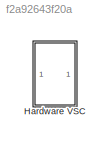
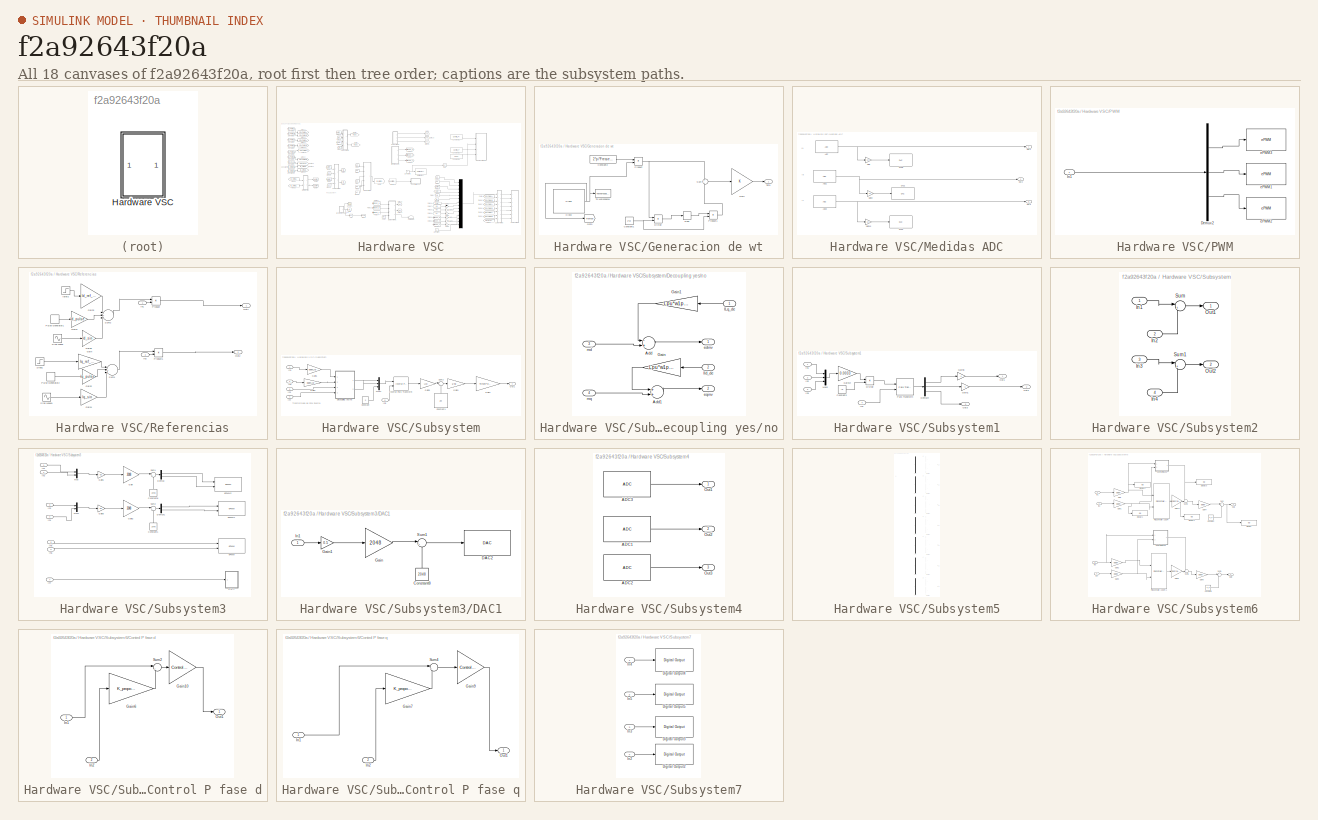
[diagram: thumbnail index - all 18 canvases of the model, root first then tree order]
MODEL slx_f2a92643f20a
KIND model
CONFIG AbsTol = auto
CONFIG EnableMultiTasking = on
CONFIG FixedStep = T_pwm
CONFIG MaxStep = 1e-4
CONFIG MinStep = auto
CONFIG RelTol = auto
CONFIG SampleTimeConstraint = Unconstrained
CONFIG Solver = FixedStepDiscrete
CONFIG SolverName = FixedStepDiscrete
CONFIG StartTime = 0.0
CONFIG StopTime = Inf
WORKSPACE source: mxarray member
WORKSPACE Control_P = 0
WORKSPACE Control_PI = 0
WORKSPACE I_integral = 0
WORKSPACE Id_pulse = 0
WORKSPACE Id_ref_const = 0
WORKSPACE Id_simulink = 0
WORKSPACE Id_sin = 0
WORKSPACE Iq_pulse = 0
WORKSPACE Iq_ref_const = 0
WORKSPACE Iq_simulink = 0
WORKSPACE Iq_sin = 0
WORKSPACE K_integral = 0
WORKSPACE K_proporcional = 0
WORKSPACE SELDACB = 0
WORKSPACE SELPWM4A = 0
WORKSPACE SELPWM4B = 0
WORKSPACE SELPWM5A = 0
WORKSPACE SELPWM5B = 0
WORKSPACE SELPWM6A = 0
WORKSPACE SELPWM6B = 0
WORKSPACE a_d = 0
WORKSPACE a_q = 0
WORKSPACE b_integral = 0
WORKSPACE b_proporcional = 0
WORKSPACE open = 0
WORKSPACE open_Id = 0
WORKSPACE open_Iq = 0
WORKSPACE open_control = 0
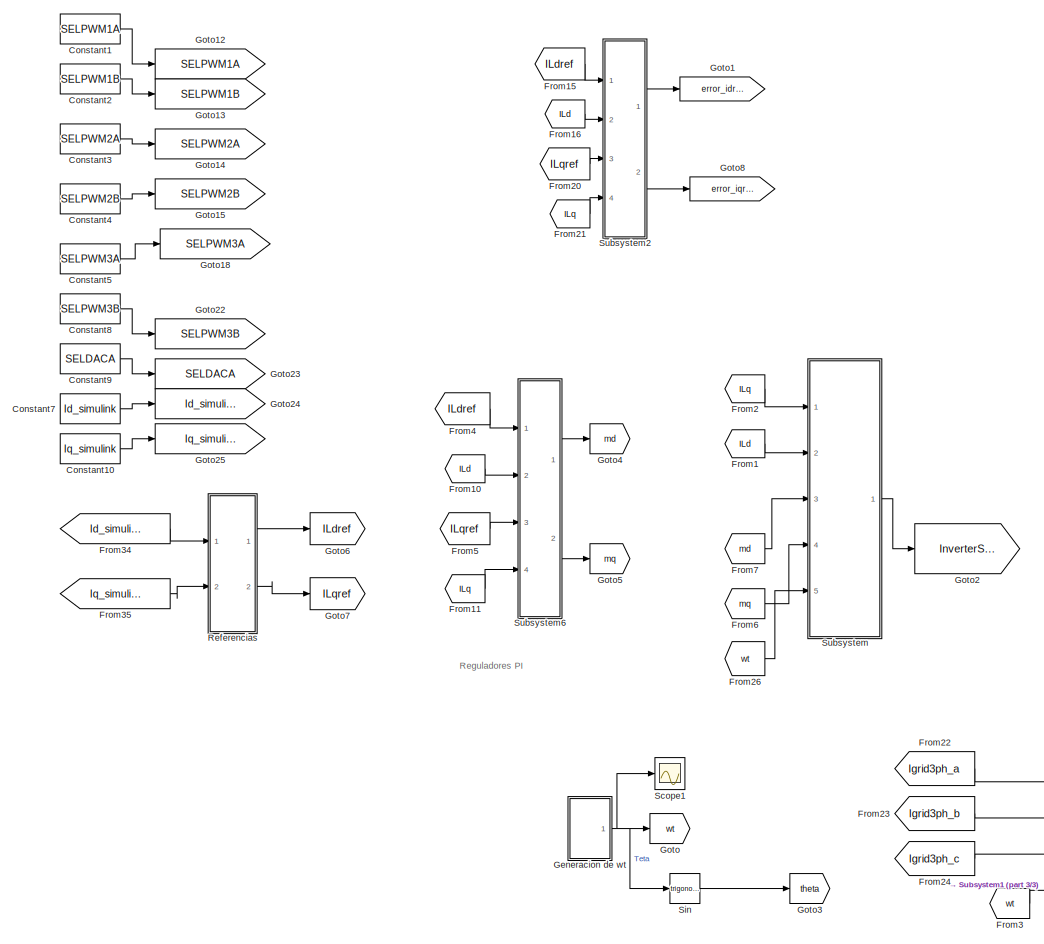
[diagram: Hardware VSC - part 1/3, left side, full height]
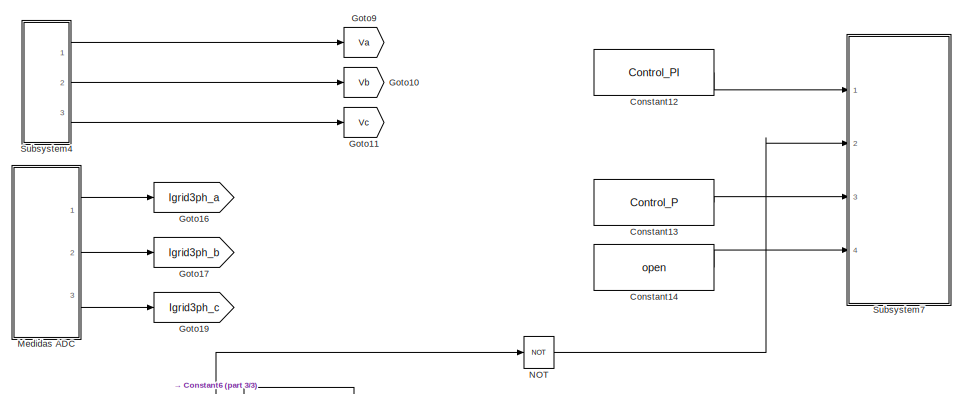
[diagram: Hardware VSC - part 2/3, top center region]
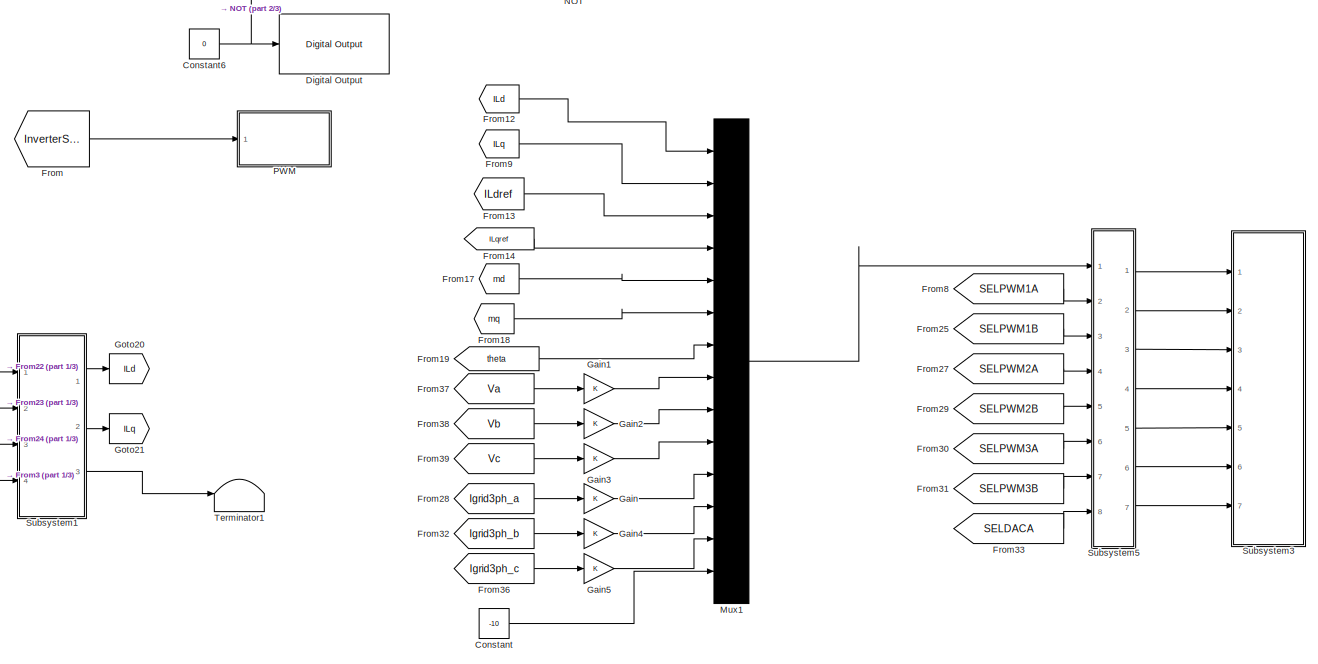
[diagram: Hardware VSC - part 3/3, bottom right region]
BLOCK [SubSystem] Hardware VSC
  Ports = []
  RequestExecContextInheritance = off
BLOCK [Constant] Hardware VSC/Constant
  Value = -10
BLOCK [Constant] Hardware VSC/Constant1
  SampleTime = -1
  Value = SELPWM1A
BLOCK [Constant] Hardware VSC/Constant10
  SampleTime = -1
  Value = Iq_simulink
BLOCK [Constant] Hardware VSC/Constant12
  SampleTime = -1
  Value = Control_PI
BLOCK [Constant] Hardware VSC/Constant13
  SampleTime = -1
  Value = Control_P
BLOCK [Constant] Hardware VSC/Constant14
  SampleTime = -1
  Value = open
BLOCK [Constant] Hardware VSC/Constant2
  SampleTime = -1
  Value = SELPWM1B
BLOCK [Constant] Hardware VSC/Constant3
  SampleTime = -1
  Value = SELPWM2A
BLOCK [Constant] Hardware VSC/Constant4
  SampleTime = -1
  Value = SELPWM2B
BLOCK [Constant] Hardware VSC/Constant5
  Value = SELPWM3A
BLOCK [Constant] Hardware VSC/Constant6
  OutDataTypeStr = uint16
  SampleTime = -1
  Value = 0
BLOCK [Constant] Hardware VSC/Constant7
  SampleTime = -1
  Value = Id_simulink
BLOCK [Constant] Hardware VSC/Constant8
  SampleTime = -1
  Value = SELPWM3B
BLOCK [Constant] Hardware VSC/Constant9
  SampleTime = -1
  Value = SELDACA
BLOCK [Reference] Hardware VSC/Digital Output  REF=c2837xDlib/Digital Output
  Ports = [1]
  SourceBlock = c2837xDlib/Digital Output
  SourceProductBaseCode = TIC2000
  SourceProductName = Embedded Coder Support Package for Texas Instruments C2000 Processors
  SourceType = F2837x GPIO Digital Output
  UserDataPersistent = on
BLOCK [From] Hardware VSC/From
  GotoTag = InverterSignals
BLOCK [From] Hardware VSC/From1
  GotoTag = ILd
BLOCK [From] Hardware VSC/From10
  GotoTag = ILd
BLOCK [From] Hardware VSC/From11
  GotoTag = ILq
BLOCK [From] Hardware VSC/From12
  GotoTag = ILd
BLOCK [From] Hardware VSC/From13
  GotoTag = ILdref
BLOCK [From] Hardware VSC/From14
  GotoTag = ILqref
BLOCK [From] Hardware VSC/From15
  GotoTag = ILdref
BLOCK [From] Hardware VSC/From16
  GotoTag = ILd
BLOCK [From] Hardware VSC/From17
  GotoTag = md
BLOCK [From] Hardware VSC/From18
  GotoTag = mq
BLOCK [From] Hardware VSC/From19
  GotoTag = theta
BLOCK [From] Hardware VSC/From2
  GotoTag = ILq
BLOCK [From] Hardware VSC/From20
  GotoTag = ILqref
BLOCK [From] Hardware VSC/From21
  GotoTag = ILq
BLOCK [From] Hardware VSC/From22
  GotoTag = Igrid3ph_a
BLOCK [From] Hardware VSC/From23
  GotoTag = Igrid3ph_b
BLOCK [From] Hardware VSC/From24
  GotoTag = Igrid3ph_c
BLOCK [From] Hardware VSC/From25
  GotoTag = SELPWM1B
BLOCK [From] Hardware VSC/From26
  GotoTag = wt
BLOCK [From] Hardware VSC/From27
  GotoTag = SELPWM2A
BLOCK [From] Hardware VSC/From28
  GotoTag = Igrid3ph_a
BLOCK [From] Hardware VSC/From29
  GotoTag = SELPWM2B
BLOCK [From] Hardware VSC/From3
  GotoTag = wt
BLOCK [From] Hardware VSC/From30
  GotoTag = SELPWM3A
BLOCK [From] Hardware VSC/From31
  GotoTag = SELPWM3B
BLOCK [From] Hardware VSC/From32
  GotoTag = Igrid3ph_b
BLOCK [From] Hardware VSC/From33
  GotoTag = SELDACA
BLOCK [From] Hardware VSC/From34
  GotoTag = Id_simulink
BLOCK [From] Hardware VSC/From35
  GotoTag = Iq_simulink
BLOCK [From] Hardware VSC/From36
  GotoTag = Igrid3ph_c
BLOCK [From] Hardware VSC/From37
  GotoTag = Va
BLOCK [From] Hardware VSC/From38
  GotoTag = Vb
BLOCK [From] Hardware VSC/From39
  GotoTag = Vc
BLOCK [From] Hardware VSC/From4
  GotoTag = ILdref
BLOCK [From] Hardware VSC/From5
  GotoTag = ILqref
BLOCK [From] Hardware VSC/From6
  GotoTag = mq
BLOCK [From] Hardware VSC/From7
  GotoTag = md
BLOCK [From] Hardware VSC/From8
  GotoTag = SELPWM1A
BLOCK [From] Hardware VSC/From9
  GotoTag = ILq
BLOCK [Gain] Hardware VSC/Gain
  OutDataTypeStr = double
  ParamDataTypeStr = Inherit: Inherit via internal rule
  SaturateOnIntegerOverflow = off
BLOCK [Gain] Hardware VSC/Gain1
  OutDataTypeStr = double
  ParamDataTypeStr = Inherit: Inherit via internal rule
  SaturateOnIntegerOverflow = off
BLOCK [Gain] Hardware VSC/Gain2
  OutDataTypeStr = double
  ParamDataTypeStr = Inherit: Inherit via internal rule
  SaturateOnIntegerOverflow = off
BLOCK [Gain] Hardware VSC/Gain3
  OutDataTypeStr = double
  ParamDataTypeStr = Inherit: Inherit via internal rule
  SaturateOnIntegerOverflow = off
BLOCK [Gain] Hardware VSC/Gain4
  OutDataTypeStr = double
  ParamDataTypeStr = Inherit: Inherit via internal rule
  SaturateOnIntegerOverflow = off
BLOCK [Gain] Hardware VSC/Gain5
  OutDataTypeStr = double
  ParamDataTypeStr = Inherit: Inherit via internal rule
  SaturateOnIntegerOverflow = off
BLOCK [SubSystem] Hardware VSC/Generacion de wt
  Ports = [0, 1]
  RequestExecContextInheritance = off
BLOCK [Clock] Hardware VSC/Generacion de wt/Clock
  Decimation = 100
  DisplayTime = on
BLOCK [Constant] Hardware VSC/Generacion de wt/Constant1
  SampleTime = -1
  Value = 2*pi
BLOCK [Constant] Hardware VSC/Generacion de wt/Constant2
  SampleTime = -1
  Value = 2*pi*Frecuencia_Red
BLOCK [Product] Hardware VSC/Generacion de wt/Divide
  InputSameDT = off
  Inputs = */
  OutDataTypeStr = Inherit: Inherit via internal rule
  Ports = [2, 1]
  RndMeth = Floor
  SaturateOnIntegerOverflow = off
BLOCK [Rounding] Hardware VSC/Generacion de wt/Floor
BLOCK [Gain] Hardware VSC/Generacion de wt/Gain
  OutDataTypeStr = Inherit: Inherit via internal rule
  ParamDataTypeStr = Inherit: Inherit via internal rule
  SaturateOnIntegerOverflow = off
BLOCK [Goto] Hardware VSC/Generacion de wt/Goto
  GotoTag = Tiempo
BLOCK [Product] Hardware VSC/Generacion de wt/Product
  InputSameDT = off
  OutDataTypeStr = Inherit: Inherit via internal rule
  Ports = [2, 1]
  RndMeth = Floor
  SaturateOnIntegerOverflow = off
BLOCK [Product] Hardware VSC/Generacion de wt/Product1
  InputSameDT = off
  OutDataTypeStr = Inherit: Inherit via internal rule
  Ports = [2, 1]
  RndMeth = Floor
  SaturateOnIntegerOverflow = off
BLOCK [Sum] Hardware VSC/Generacion de wt/Sum
  IconShape = round
  InputSameDT = off
  Inputs = +-
  OutDataTypeStr = Inherit: Inherit via internal rule
  Ports = [2, 1]
  SaturateOnIntegerOverflow = off
BLOCK [Outport] Hardware VSC/Generacion de wt/Teta
  IconDisplay = Port number
  VectorParamsAs1DForOutWhenUnconnected = off
BLOCK [ToWorkspace] Hardware VSC/Generacion de wt/To Workspace4
  FixptAsFi = on
  MaxDataPoints = inf
  Ports = [1]
  VariableName = Tiempo
BLOCK [Goto] Hardware VSC/Goto
  GotoTag = wt
BLOCK [Goto] Hardware VSC/Goto1
  GotoTag = error_idref_id
BLOCK [Goto] Hardware VSC/Goto10
  GotoTag = Vb
BLOCK [Goto] Hardware VSC/Goto11
  GotoTag = Vc
BLOCK [Goto] Hardware VSC/Goto12
  GotoTag = SELPWM1A
BLOCK [Goto] Hardware VSC/Goto13
  GotoTag = SELPWM1B
BLOCK [Goto] Hardware VSC/Goto14
  GotoTag = SELPWM2A
BLOCK [Goto] Hardware VSC/Goto15
  GotoTag = SELPWM2B
BLOCK [Goto] Hardware VSC/Goto16
  GotoTag = Igrid3ph_a
BLOCK [Goto] Hardware VSC/Goto17
  GotoTag = Igrid3ph_b
BLOCK [Goto] Hardware VSC/Goto18
  GotoTag = SELPWM3A
BLOCK [Goto] Hardware VSC/Goto19
  GotoTag = Igrid3ph_c
BLOCK [Goto] Hardware VSC/Goto2
  GotoTag = InverterSignals
BLOCK [Goto] Hardware VSC/Goto20
  GotoTag = ILd
BLOCK [Goto] Hardware VSC/Goto21
  GotoTag = ILq
BLOCK [Goto] Hardware VSC/Goto22
  GotoTag = SELPWM3B
BLOCK [Goto] Hardware VSC/Goto23
  GotoTag = SELDACA
BLOCK [Goto] Hardware VSC/Goto24
  GotoTag = Id_simulink
BLOCK [Goto] Hardware VSC/Goto25
  GotoTag = Iq_simulink
BLOCK [Goto] Hardware VSC/Goto3
  GotoTag = theta
BLOCK [Goto] Hardware VSC/Goto4
  GotoTag = md
BLOCK [Goto] Hardware VSC/Goto5
  GotoTag = mq
BLOCK [Goto] Hardware VSC/Goto6
  GotoTag = ILdref
BLOCK [Goto] Hardware VSC/Goto7
  GotoTag = ILqref
BLOCK [Goto] Hardware VSC/Goto8
  GotoTag = error_iqref_iq
BLOCK [Goto] Hardware VSC/Goto9
  GotoTag = Va
BLOCK [SubSystem] Hardware VSC/Medidas ADC
  Ports = [0, 3]
  RequestExecContextInheritance = off
BLOCK [Reference] Hardware VSC/Medidas ADC/ADC  REF=c2802xlib/ADC
  Ports = [0, 1]
  SourceBlock = c2802xlib/ADC
  SourceProductBaseCode = TIC2000
  SourceProductName = Embedded Coder Support Package for Texas Instruments C2000 Processors
  SourceType = C2802x/03x/05x/06x/M3x/37x/07x/004x ADC
  UserDataPersistent = on
BLOCK [Reference] Hardware VSC/Medidas ADC/ADC1  REF=c2802xlib/ADC
  Ports = [0, 1]
  SourceBlock = c2802xlib/ADC
  SourceProductBaseCode = TIC2000
  SourceProductName = Embedded Coder Support Package for Texas Instruments C2000 Processors
  SourceType = C2802x/03x/05x/06x/M3x/37x/07x/004x ADC
  UserDataPersistent = on
BLOCK [Reference] Hardware VSC/Medidas ADC/ADC2  REF=c2802xlib/ADC
  Ports = [0, 1]
  SourceBlock = c2802xlib/ADC
  SourceProductBaseCode = TIC2000
  SourceProductName = Embedded Coder Support Package for Texas Instruments C2000 Processors
  SourceType = C2802x/03x/05x/06x/M3x/37x/07x/004x ADC
  UserDataPersistent = on
BLOCK [Reference] Hardware VSC/Medidas ADC/DAC1  REF=c2837xDlib/DAC
  Commented = on
  Ports = [1]
  SourceBlock = c2837xDlib/DAC
  SourceProductBaseCode = TIC2000
  SourceProductName = Embedded Coder Support Package for Texas Instruments C2000 Processors
  SourceType = codertarget.tic2000.blocks.DACWrite
BLOCK [Reference] Hardware VSC/Medidas ADC/DAC2  REF=c2837xDlib/DAC
  Commented = on
  Ports = [1]
  SourceBlock = c2837xDlib/DAC
  SourceProductBaseCode = TIC2000
  SourceProductName = Embedded Coder Support Package for Texas Instruments C2000 Processors
  SourceType = codertarget.tic2000.blocks.DACWrite
BLOCK [Reference] Hardware VSC/Medidas ADC/DAC8  REF=c2837xDlib/DAC
  Commented = on
  Ports = [1]
  SourceBlock = c2837xDlib/DAC
  SourceProductBaseCode = TIC2000
  SourceProductName = Embedded Coder Support Package for Texas Instruments C2000 Processors
  SourceType = codertarget.tic2000.blocks.DACWrite
BLOCK [Gain] Hardware VSC/Medidas ADC/Gain
  Commented = on
  Gain = 10
  OutDataTypeStr = Inherit: Inherit via internal rule
  ParamDataTypeStr = Inherit: Inherit via internal rule
  SaturateOnIntegerOverflow = off
BLOCK [Gain] Hardware VSC/Medidas ADC/Gain15
  Commented = on
  Gain = 10
  OutDataTypeStr = Inherit: Inherit via internal rule
  ParamDataTypeStr = Inherit: Inherit via internal rule
  SaturateOnIntegerOverflow = off
BLOCK [Gain] Hardware VSC/Medidas ADC/Gain2
  Commented = on
  Gain = 10
  OutDataTypeStr = Inherit: Inherit via internal rule
  ParamDataTypeStr = Inherit: Inherit via internal rule
  SaturateOnIntegerOverflow = off
BLOCK [Outport] Hardware VSC/Medidas ADC/Out1
  IconDisplay = Port number
  VectorParamsAs1DForOutWhenUnconnected = off
BLOCK [Outport] Hardware VSC/Medidas ADC/Out2
  IconDisplay = Port number
  Port = 2
  VectorParamsAs1DForOutWhenUnconnected = off
BLOCK [Outport] Hardware VSC/Medidas ADC/Out3
  IconDisplay = Port number
  Port = 3
  VectorParamsAs1DForOutWhenUnconnected = off
BLOCK [Mux] Hardware VSC/Mux1
  DisplayOption = bar
  Inputs = 14
  Ports = [14, 1]
BLOCK [Logic] Hardware VSC/NOT
  AllPortsSameDT = off
  IconShape = distinctive
  Operator = NOT
  OutDataTypeStr = boolean
  Ports = [1, 1]
BLOCK [SubSystem] Hardware VSC/PWM
  Ports = [1]
  RequestExecContextInheritance = off
BLOCK [Demux] Hardware VSC/PWM/Demux2
  DisplayOption = bar
  Outputs = 3
  Ports = [1, 3]
BLOCK [Inport] Hardware VSC/PWM/In1
  IconDisplay = Port number
BLOCK [Reference] Hardware VSC/PWM/ePWM1  REF=c2802xlib/ePWM
  Ports = [1]
  SourceBlock = c2802xlib/ePWM
  SourceProductBaseCode = TIC2000
  SourceProductName = Embedded Coder Support Package for Texas Instruments C2000 Processors
  SourceType = C2802x/03x/05x/06x/M3x/37x/07x/004x ePWM
  UserDataPersistent = on
BLOCK [Reference] Hardware VSC/PWM/ePWM2  REF=c2802xlib/ePWM
  Ports = [1]
  SourceBlock = c2802xlib/ePWM
  SourceProductBaseCode = TIC2000
  SourceProductName = Embedded Coder Support Package for Texas Instruments C2000 Processors
  SourceType = C2802x/03x/05x/06x/M3x/37x/07x/004x ePWM
  UserDataPersistent = on
BLOCK [Reference] Hardware VSC/PWM/ePWM3  REF=c2802xlib/ePWM
  Ports = [1]
  SourceBlock = c2802xlib/ePWM
  SourceProductBaseCode = TIC2000
  SourceProductName = Embedded Coder Support Package for Texas Instruments C2000 Processors
  SourceType = C2802x/03x/05x/06x/M3x/37x/07x/004x ePWM
  UserDataPersistent = on
BLOCK [SubSystem] Hardware VSC/Referencias
  Ports = [2, 2]
  RequestExecContextInheritance = off
BLOCK [Gain] Hardware VSC/Referencias/Gain
  Gain = Iq_ref_const
  OutDataTypeStr = Inherit: Inherit via internal rule
  ParamDataTypeStr = Inherit: Inherit via internal rule
  SaturateOnIntegerOverflow = off
BLOCK [Gain] Hardware VSC/Referencias/Gain1
  Gain = Id_pulse
  OutDataTypeStr = Inherit: Inherit via internal rule
  ParamDataTypeStr = Inherit: Inherit via internal rule
  SaturateOnIntegerOverflow = off
BLOCK [Gain] Hardware VSC/Referencias/Gain2
  Gain = Iq_pulse
  OutDataTypeStr = Inherit: Inherit via internal rule
  ParamDataTypeStr = Inherit: Inherit via internal rule
  SaturateOnIntegerOverflow = off
BLOCK [Gain] Hardware VSC/Referencias/Gain3
  Gain = Id_ref_const
  OutDataTypeStr = Inherit: Inherit via internal rule
  ParamDataTypeStr = Inherit: Inherit via internal rule
  SaturateOnIntegerOverflow = off
BLOCK [Gain] Hardware VSC/Referencias/Gain4
  Gain = Iq_sin
  OutDataTypeStr = Inherit: Inherit via internal rule
  ParamDataTypeStr = Inherit: Inherit via internal rule
  SaturateOnIntegerOverflow = off
BLOCK [Gain] Hardware VSC/Referencias/Gain5
  Gain = Id_sin
  OutDataTypeStr = Inherit: Inherit via internal rule
  ParamDataTypeStr = Inherit: Inherit via internal rule
  SaturateOnIntegerOverflow = off
BLOCK [Step] Hardware VSC/Referencias/Idref2
  Time = 0.3
BLOCK [Inport] Hardware VSC/Referencias/In1
  IconDisplay = Port number
BLOCK [Inport] Hardware VSC/Referencias/In2
  IconDisplay = Port number
  Port = 2
BLOCK [Outport] Hardware VSC/Referencias/Out1
  IconDisplay = Port number
  VectorParamsAs1DForOutWhenUnconnected = off
BLOCK [Outport] Hardware VSC/Referencias/Out2
  IconDisplay = Port number
  Port = 2
  VectorParamsAs1DForOutWhenUnconnected = off
BLOCK [Product] Hardware VSC/Referencias/Product
  InputSameDT = off
  OutDataTypeStr = Inherit: Inherit via internal rule
  Ports = [2, 1]
  RndMeth = Floor
  SaturateOnIntegerOverflow = off
BLOCK [Product] Hardware VSC/Referencias/Product1
  InputSameDT = off
  OutDataTypeStr = Inherit: Inherit via internal rule
  Ports = [2, 1]
  RndMeth = Floor
  SaturateOnIntegerOverflow = off
BLOCK [DiscretePulseGenerator] Hardware VSC/Referencias/Pulse Generator1
  Period = 100000
  Ports = [0, 1]
  PulseWidth = 100000*0.5
  SampleTime = T_pwm
  VectorParams1D = off
BLOCK [DiscretePulseGenerator] Hardware VSC/Referencias/Pulse Generator2
  Period = 100000
  PhaseDelay = 100000*0.3
  Ports = [0, 1]
  PulseWidth = 100000*0.5
  SampleTime = T_pwm
  VectorParams1D = off
BLOCK [Sin] Hardware VSC/Referencias/Sine Wave
  Ports = [0, 1]
  SampleTime = T_pwm
  Samples = 10000
  SineType = Sample based
BLOCK [Sin] Hardware VSC/Referencias/Sine Wave1
  Ports = [0, 1]
  SampleTime = T_pwm
  Samples = 10000
  SineType = Sample based
BLOCK [Step] Hardware VSC/Referencias/Step1
  Time = 3
BLOCK [Sum] Hardware VSC/Referencias/Sum1
  IconShape = round
  InputSameDT = off
  Inputs = |+|+|+|
  OutDataTypeStr = Inherit: Inherit via internal rule
  Ports = [3, 1]
  SaturateOnIntegerOverflow = off
BLOCK [Sum] Hardware VSC/Referencias/Sum2
  IconShape = round
  InputSameDT = off
  Inputs = |+|+|+|
  OutDataTypeStr = Inherit: Inherit via internal rule
  Ports = [3, 1]
  SaturateOnIntegerOverflow = off
BLOCK [Scope] Hardware VSC/Scope1
  Floating = off
  NumInputPorts = 1
  Ports = [1]
  ScopeSpecificationString = Simulink.scopes.TimeScopeBlockCfg('CurrentConfiguration', extmgr.ConfigurationSet(extmgr.Configuration('Core','General UI',true),extmgr.Configuration('Core','Source UI',true),extmgr.Configuration('Sources','WiredSimulink',true,'DataLoggingVariableName','ScopeData17'),extmgr.Configuration('Visuals','Time Domain',true,'SerializedDisplays',{struct('MinYLimReal','-0.4957','MaxYLimReal','6.62867','YLab...<+1377ch>
BLOCK [Trigonometry] Hardware VSC/Sin
  Ports = [1, 1]
BLOCK [SubSystem] Hardware VSC/Subsystem
  Ports = [5, 1]
  RequestExecContextInheritance = off
BLOCK [Constant] Hardware VSC/Subsystem/Constant
  SampleTime = -1
  Value = 0
BLOCK [Constant] Hardware VSC/Subsystem/Constant1
  SampleTime = -1
  Value = 24
BLOCK [SubSystem] Hardware VSC/Subsystem/Decoupling yes//no
  Ports = [4, 2]
  RequestExecContextInheritance = off
BLOCK [Sum] Hardware VSC/Subsystem/Decoupling yes//no/Add
  InputSameDT = off
  Inputs = -+
  OutDataTypeStr = Inherit: Inherit via internal rule
  Ports = [2, 1]
  SaturateOnIntegerOverflow = off
BLOCK [Sum] Hardware VSC/Subsystem/Decoupling yes//no/Add1
  InputSameDT = off
  OutDataTypeStr = Inherit: Inherit via internal rule
  Ports = [2, 1]
  SaturateOnIntegerOverflow = off
BLOCK [Gain] Hardware VSC/Subsystem/Decoupling yes//no/Gain
  Gain = Lpu*w1pu*Dec
  OutDataTypeStr = Inherit: Inherit via internal rule
  ParamDataTypeStr = Inherit: Inherit via internal rule
  SaturateOnIntegerOverflow = off
BLOCK [Gain] Hardware VSC/Subsystem/Decoupling yes//no/Gain1
  Gain = Lpu*w1pu*Dec
  OutDataTypeStr = Inherit: Inherit via internal rule
  ParamDataTypeStr = Inherit: Inherit via internal rule
  SaturateOnIntegerOverflow = off
BLOCK [Inport] Hardware VSC/Subsystem/Decoupling yes//no/ILq_de
  IconDisplay = Port number
BLOCK [Inport] Hardware VSC/Subsystem/Decoupling yes//no/Ild_de
  IconDisplay = Port number
  Port = 2
BLOCK [Outport] Hardware VSC/Subsystem/Decoupling yes//no/edinv
  IconDisplay = Port number
  VectorParamsAs1DForOutWhenUnconnected = off
BLOCK [Outport] Hardware VSC/Subsystem/Decoupling yes//no/eqinv
  IconDisplay = Port number
  Port = 2
  VectorParamsAs1DForOutWhenUnconnected = off
BLOCK [Inport] Hardware VSC/Subsystem/Decoupling yes//no/md
  IconDisplay = Port number
  Port = 3
BLOCK [Inport] Hardware VSC/Subsystem/Decoupling yes//no/mq
  IconDisplay = Port number
  Port = 4
BLOCK [Gain] Hardware VSC/Subsystem/Gain1
  Gain = open_Id
  OutDataTypeStr = Inherit: Inherit via internal rule
  ParamDataTypeStr = Inherit: Inherit via internal rule
  SaturateOnIntegerOverflow = off
BLOCK [Gain] Hardware VSC/Subsystem/Gain2
  Gain = open_Iq
  OutDataTypeStr = Inherit: Inherit via internal rule
  ParamDataTypeStr = Inherit: Inherit via internal rule
  SaturateOnIntegerOverflow = off
BLOCK [Gain] Hardware VSC/Subsystem/Gain3
  Gain = 1/48
  OutDataTypeStr = Inherit: Inherit via internal rule
  ParamDataTypeStr = Inherit: Inherit via internal rule
  SaturateOnIntegerOverflow = off
BLOCK [Gain] Hardware VSC/Subsystem/Gain4
  Gain = TimerPeriod
  OutDataTypeStr = Inherit: Inherit via internal rule
  ParamDataTypeStr = Inherit: Inherit via internal rule
  SaturateOnIntegerOverflow = off
BLOCK [Gain] Hardware VSC/Subsystem/Gain5
  Gain = Ub
  OutDataTypeStr = Inherit: Inherit via internal rule
  ParamDataTypeStr = Inherit: Inherit via internal rule
  SaturateOnIntegerOverflow = off
BLOCK [Inport] Hardware VSC/Subsystem/In1
  IconDisplay = Port number
BLOCK [Inport] Hardware VSC/Subsystem/In2
  IconDisplay = Port number
  Port = 2
BLOCK [Inport] Hardware VSC/Subsystem/In3
  IconDisplay = Port number
  Port = 3
BLOCK [Inport] Hardware VSC/Subsystem/In4
  IconDisplay = Port number
  Port = 4
BLOCK [Inport] Hardware VSC/Subsystem/In5
  IconDisplay = Port number
  Port = 5
BLOCK [Reference] Hardware VSC/Subsystem/Inverse Park Transform  REF=eeTransforms/Inverse
Park Transform
  Ports = [2, 1]
  SourceBlock = eeTransforms/Inverse\nPark Transform
  SourceProductBaseCode = PS
  SourceProductName = Simscape Electrical
  SourceType = Inverse Park Transform
BLOCK [Mux] Hardware VSC/Subsystem/Mux4
  DisplayOption = bar
  Inputs = 3
  Ports = [3, 1]
BLOCK [Outport] Hardware VSC/Subsystem/Out1
  IconDisplay = Port number
  VectorParamsAs1DForOutWhenUnconnected = off
BLOCK [Sum] Hardware VSC/Subsystem/Sum2
  IconShape = round
  InputSameDT = off
  Inputs = |++
  OutDataTypeStr = Inherit: Inherit via internal rule
  Ports = [2, 1]
  SaturateOnIntegerOverflow = off
BLOCK [SubSystem] Hardware VSC/Subsystem1
  Ports = [4, 3]
  RequestExecContextInheritance = off
BLOCK [Constant] Hardware VSC/Subsystem1/Constant2
  SampleTime = -1
  Value = Ib
BLOCK [Demux] Hardware VSC/Subsystem1/Demux4
  DisplayOption = bar
  Outputs = 3
  Ports = [1, 3]
BLOCK [Product] Hardware VSC/Subsystem1/Divide
  InputSameDT = off
  Inputs = */
  OutDataTypeStr = Inherit: Inherit via internal rule
  Ports = [2, 1]
  RndMeth = Floor
  SaturateOnIntegerOverflow = off
BLOCK [Gain] Hardware VSC/Subsystem1/Gain1
  Gain = -1
  OutDataTypeStr = Inherit: Inherit via internal rule
  ParamDataTypeStr = Inherit: Inherit via internal rule
  SaturateOnIntegerOverflow = off
BLOCK [Gain] Hardware VSC/Subsystem1/Gain14
  Gain = 0.0033
  OutDataTypeStr = Inherit: Inherit via internal rule
  ParamDataTypeStr = Inherit: Inherit via internal rule
  SaturateOnIntegerOverflow = off
BLOCK [Gain] Hardware VSC/Subsystem1/Gain8
  Gain = -1
  OutDataTypeStr = Inherit: Inherit via internal rule
  ParamDataTypeStr = Inherit: Inherit via internal rule
  SaturateOnIntegerOverflow = off
BLOCK [Inport] Hardware VSC/Subsystem1/In1
  IconDisplay = Port number
BLOCK [Inport] Hardware VSC/Subsystem1/In2
  IconDisplay = Port number
  Port = 2
BLOCK [Inport] Hardware VSC/Subsystem1/In3
  IconDisplay = Port number
  Port = 3
BLOCK [Inport] Hardware VSC/Subsystem1/In4
  IconDisplay = Port number
  Port = 4
BLOCK [Mux] Hardware VSC/Subsystem1/Mux2
  DisplayOption = bar
  Inputs = 3
  Ports = [3, 1]
BLOCK [Outport] Hardware VSC/Subsystem1/Out1
  IconDisplay = Port number
  VectorParamsAs1DForOutWhenUnconnected = off
BLOCK [Outport] Hardware VSC/Subsystem1/Out2
  IconDisplay = Port number
  Port = 2
  VectorParamsAs1DForOutWhenUnconnected = off
BLOCK [Outport] Hardware VSC/Subsystem1/Out3
  IconDisplay = Port number
  Port = 3
  VectorParamsAs1DForOutWhenUnconnected = off
BLOCK [Reference] Hardware VSC/Subsystem1/Park Transform  REF=eeTransforms/Park Transform
  Ports = [2, 1]
  SourceBlock = eeTransforms/Park Transform
  SourceProductBaseCode = PS
  SourceProductName = Simscape Electrical
  SourceType = Park Transform
BLOCK [SubSystem] Hardware VSC/Subsystem2
  Ports = [4, 2]
  RequestExecContextInheritance = off
BLOCK [Inport] Hardware VSC/Subsystem2/In1
  IconDisplay = Port number
BLOCK [Inport] Hardware VSC/Subsystem2/In2
  IconDisplay = Port number
  Port = 2
BLOCK [Inport] Hardware VSC/Subsystem2/In3
  IconDisplay = Port number
  Port = 3
BLOCK [Inport] Hardware VSC/Subsystem2/In4
  IconDisplay = Port number
  Port = 4
BLOCK [Outport] Hardware VSC/Subsystem2/Out1
  IconDisplay = Port number
  VectorParamsAs1DForOutWhenUnconnected = off
BLOCK [Outport] Hardware VSC/Subsystem2/Out2
  IconDisplay = Port number
  Port = 2
  VectorParamsAs1DForOutWhenUnconnected = off
BLOCK [Sum] Hardware VSC/Subsystem2/Sum
  IconShape = round
  InputSameDT = off
  Inputs = |+-
  OutDataTypeStr = Inherit: Inherit via internal rule
  Ports = [2, 1]
  SaturateOnIntegerOverflow = off
BLOCK [Sum] Hardware VSC/Subsystem2/Sum1
  IconShape = round
  InputSameDT = off
  Inputs = |+-
  OutDataTypeStr = Inherit: Inherit via internal rule
  Ports = [2, 1]
  SaturateOnIntegerOverflow = off
BLOCK [SubSystem] Hardware VSC/Subsystem3
  Ports = [7]
  RequestExecContextInheritance = off
BLOCK [Constant] Hardware VSC/Subsystem3/Constant1
  SampleTime = -1
  Value = 2048
BLOCK [Constant] Hardware VSC/Subsystem3/Constant8
  SampleTime = -1
  Value = 2048
BLOCK [SubSystem] Hardware VSC/Subsystem3/DAC1
  Ports = [1]
  RequestExecContextInheritance = off
BLOCK [Constant] Hardware VSC/Subsystem3/DAC1/Constant8
  SampleTime = -1
  Value = 2048
BLOCK [Reference] Hardware VSC/Subsystem3/DAC1/DAC2  REF=c2837xDlib/DAC
  Ports = [1]
  SourceBlock = c2837xDlib/DAC
  SourceProductBaseCode = TIC2000
  SourceProductName = Embedded Coder Support Package for Texas Instruments C2000 Processors
  SourceType = codertarget.tic2000.blocks.DACWrite
BLOCK [Gain] Hardware VSC/Subsystem3/DAC1/Gain
  Gain = 2048
  OutDataTypeStr = Inherit: Inherit via internal rule
  ParamDataTypeStr = Inherit: Inherit via internal rule
  SaturateOnIntegerOverflow = off
BLOCK [Gain] Hardware VSC/Subsystem3/DAC1/Gain1
  Gain = 0.5
  OutDataTypeStr = Inherit: Inherit via internal rule
  ParamDataTypeStr = Inherit: Inherit via internal rule
  SaturateOnIntegerOverflow = off
BLOCK [Inport] Hardware VSC/Subsystem3/DAC1/In1
  IconDisplay = Port number
BLOCK [Sum] Hardware VSC/Subsystem3/DAC1/Sum1
  IconShape = round
  InputSameDT = off
  Inputs = |++
  OutDataTypeStr = Inherit: Inherit via internal rule
  Ports = [2, 1]
  SaturateOnIntegerOverflow = off
BLOCK [Demux] Hardware VSC/Subsystem3/Demux
  DisplayOption = bar
  Outputs = 2
  Ports = [1, 2]
BLOCK [Demux] Hardware VSC/Subsystem3/Demux1
  DisplayOption = bar
  Outputs = 2
  Ports = [1, 2]
BLOCK [Gain] Hardware VSC/Subsystem3/Gain
  Gain = 2048
  OutDataTypeStr = Inherit: Inherit via internal rule
  ParamDataTypeStr = Inherit: Inherit via internal rule
  SaturateOnIntegerOverflow = off
BLOCK [Gain] Hardware VSC/Subsystem3/Gain1
  Gain = 0.5
  OutDataTypeStr = Inherit: Inherit via internal rule
  ParamDataTypeStr = Inherit: Inherit via internal rule
  SaturateOnIntegerOverflow = off
BLOCK [Gain] Hardware VSC/Subsystem3/Gain2
  Gain = 2048
  OutDataTypeStr = Inherit: Inherit via internal rule
  ParamDataTypeStr = Inherit: Inherit via internal rule
  SaturateOnIntegerOverflow = off
BLOCK [Gain] Hardware VSC/Subsystem3/Gain3
  Gain = 0.5
  OutDataTypeStr = Inherit: Inherit via internal rule
  ParamDataTypeStr = Inherit: Inherit via internal rule
  SaturateOnIntegerOverflow = off
BLOCK [Inport] Hardware VSC/Subsystem3/In1
  IconDisplay = Port number
BLOCK [Inport] Hardware VSC/Subsystem3/In2
  IconDisplay = Port number
  Port = 2
BLOCK [Inport] Hardware VSC/Subsystem3/In3
  IconDisplay = Port number
  Port = 3
BLOCK [Inport] Hardware VSC/Subsystem3/In4
  IconDisplay = Port number
  Port = 4
BLOCK [Inport] Hardware VSC/Subsystem3/In5
  IconDisplay = Port number
  Port = 5
BLOCK [Inport] Hardware VSC/Subsystem3/In6
  IconDisplay = Port number
  Port = 6
BLOCK [Inport] Hardware VSC/Subsystem3/In7
  IconDisplay = Port number
  Port = 7
BLOCK [Mux] Hardware VSC/Subsystem3/Mux
  DisplayOption = bar
  Inputs = 2
  Ports = [2, 1]
BLOCK [Mux] Hardware VSC/Subsystem3/Mux1
  DisplayOption = bar
  Inputs = 2
  Ports = [2, 1]
BLOCK [Sum] Hardware VSC/Subsystem3/Sum1
  IconShape = round
  InputSameDT = off
  Inputs = |++
  OutDataTypeStr = Inherit: Inherit via internal rule
  Ports = [2, 1]
  SaturateOnIntegerOverflow = off
BLOCK [Sum] Hardware VSC/Subsystem3/Sum2
  IconShape = round
  InputSameDT = off
  Inputs = |++
  OutDataTypeStr = Inherit: Inherit via internal rule
  Ports = [2, 1]
  SaturateOnIntegerOverflow = off
BLOCK [Reference] Hardware VSC/Subsystem3/ePWM  REF=c2802xlib/ePWM
  Ports = [2]
  SourceBlock = c2802xlib/ePWM
  SourceProductBaseCode = TIC2000
  SourceProductName = Embedded Coder Support Package for Texas Instruments C2000 Processors
  SourceType = C2802x/03x/05x/06x/M3x/37x/07x/004x ePWM
  UserDataPersistent = on
BLOCK [Reference] Hardware VSC/Subsystem3/ePWM1  REF=c2802xlib/ePWM
  Ports = [2]
  SourceBlock = c2802xlib/ePWM
  SourceProductBaseCode = TIC2000
  SourceProductName = Embedded Coder Support Package for Texas Instruments C2000 Processors
  SourceType = C2802x/03x/05x/06x/M3x/37x/07x/004x ePWM
  UserDataPersistent = on
BLOCK [Reference] Hardware VSC/Subsystem3/ePWM2  REF=c2802xlib/ePWM
  Ports = [2]
  SourceBlock = c2802xlib/ePWM
  SourceProductBaseCode = TIC2000
  SourceProductName = Embedded Coder Support Package for Texas Instruments C2000 Processors
  SourceType = C2802x/03x/05x/06x/M3x/37x/07x/004x ePWM
  UserDataPersistent = on
BLOCK [SubSystem] Hardware VSC/Subsystem4
  Ports = [0, 3]
  RequestExecContextInheritance = off
BLOCK [Reference] Hardware VSC/Subsystem4/ADC1  REF=c2802xlib/ADC
  Ports = [0, 1]
  SourceBlock = c2802xlib/ADC
  SourceProductBaseCode = TIC2000
  SourceProductName = Embedded Coder Support Package for Texas Instruments C2000 Processors
  SourceType = C2802x/03x/05x/06x/M3x/37x/07x/004x ADC
  UserDataPersistent = on
BLOCK [Reference] Hardware VSC/Subsystem4/ADC2  REF=c2802xlib/ADC
  Ports = [0, 1]
  SourceBlock = c2802xlib/ADC
  SourceProductBaseCode = TIC2000
  SourceProductName = Embedded Coder Support Package for Texas Instruments C2000 Processors
  SourceType = C2802x/03x/05x/06x/M3x/37x/07x/004x ADC
  UserDataPersistent = on
BLOCK [Reference] Hardware VSC/Subsystem4/ADC3  REF=c2802xlib/ADC
  Ports = [0, 1]
  SourceBlock = c2802xlib/ADC
  SourceProductBaseCode = TIC2000
  SourceProductName = Embedded Coder Support Package for Texas Instruments C2000 Processors
  SourceType = C2802x/03x/05x/06x/M3x/37x/07x/004x ADC
  UserDataPersistent = on
BLOCK [Outport] Hardware VSC/Subsystem4/Out1
  IconDisplay = Port number
  VectorParamsAs1DForOutWhenUnconnected = off
BLOCK [Outport] Hardware VSC/Subsystem4/Out2
  IconDisplay = Port number
  Port = 2
  VectorParamsAs1DForOutWhenUnconnected = off
BLOCK [Outport] Hardware VSC/Subsystem4/Out3
  IconDisplay = Port number
  Port = 3
  VectorParamsAs1DForOutWhenUnconnected = off
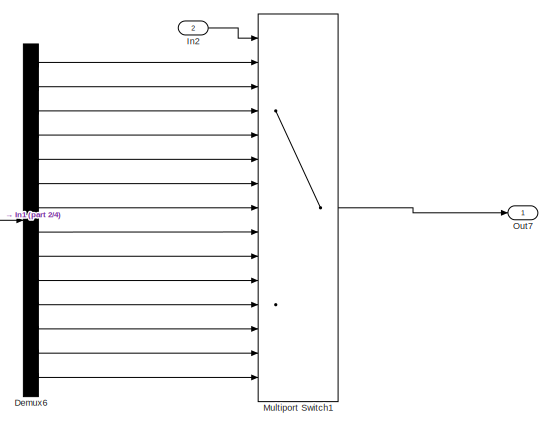
[diagram: Hardware VSC/Subsystem5 - part 1/4, top right region]
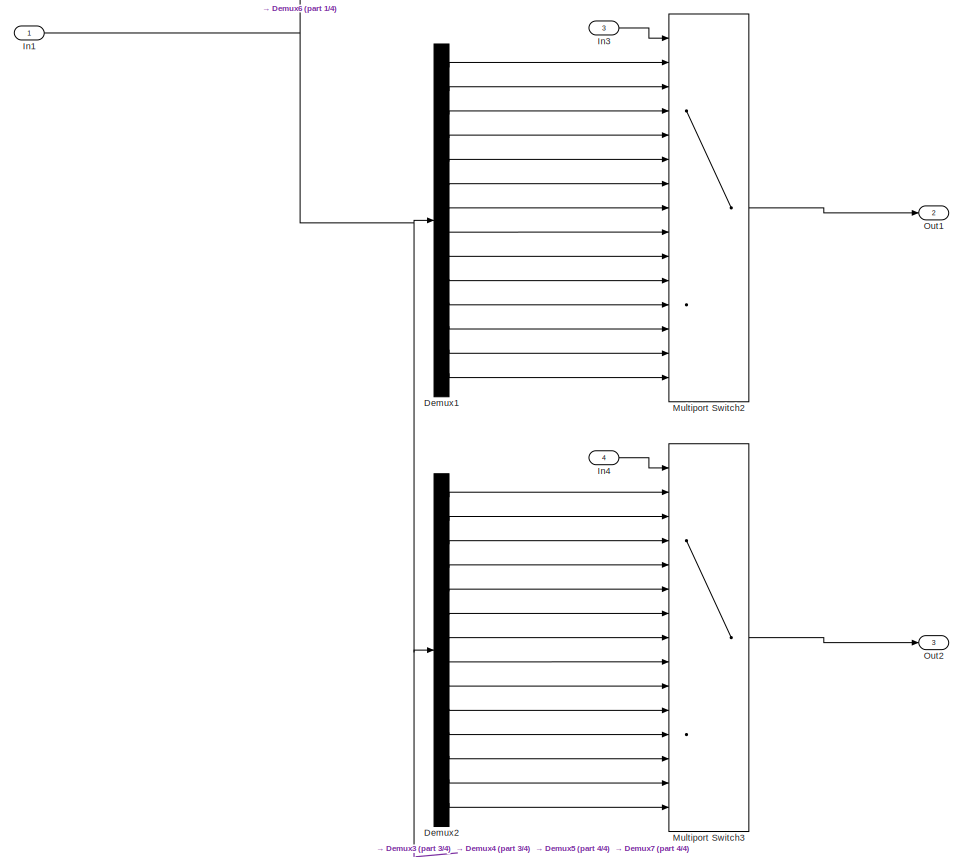
[diagram: Hardware VSC/Subsystem5 - part 2/4, full width, top band]
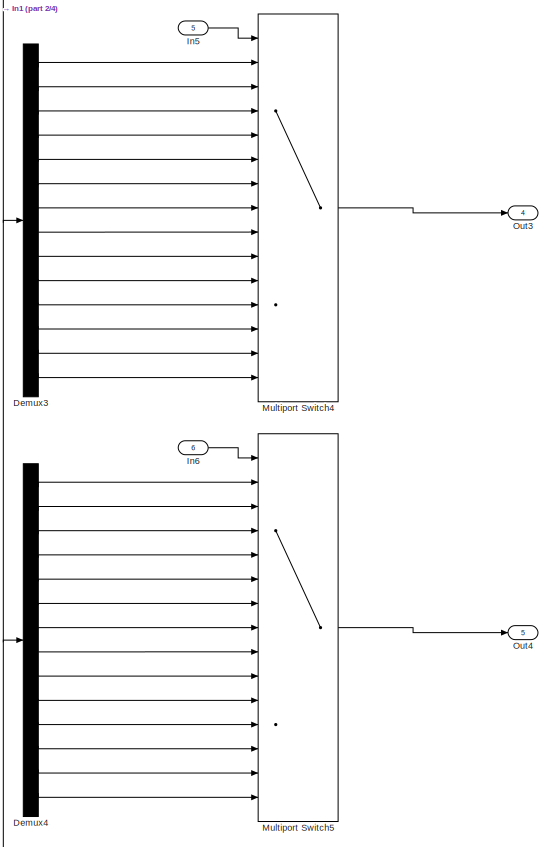
[diagram: Hardware VSC/Subsystem5 - part 3/4, middle right region]
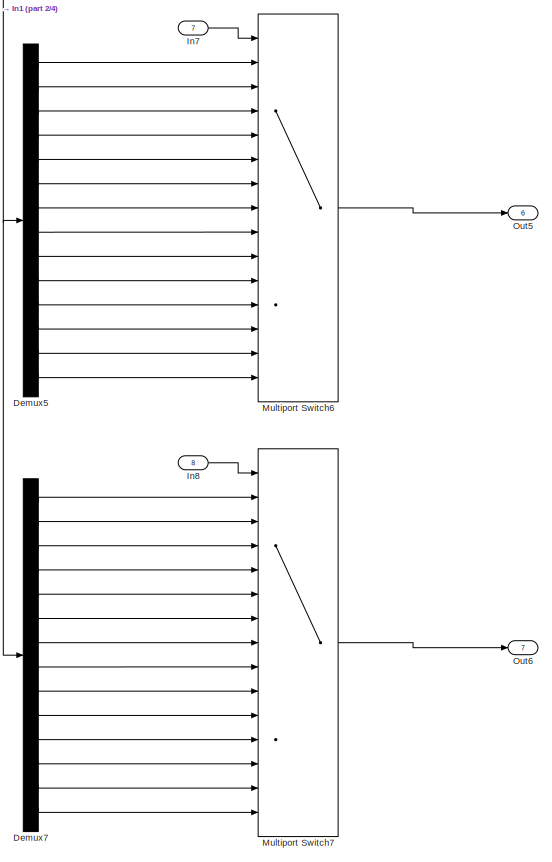
[diagram: Hardware VSC/Subsystem5 - part 4/4, bottom right region]
BLOCK [SubSystem] Hardware VSC/Subsystem5
  Ports = [8, 7]
  RequestExecContextInheritance = off
BLOCK [Demux] Hardware VSC/Subsystem5/Demux1
  DisplayOption = bar
  Outputs = 14
  Ports = [1, 14]
BLOCK [Demux] Hardware VSC/Subsystem5/Demux2
  DisplayOption = bar
  Outputs = 14
  Ports = [1, 14]
BLOCK [Demux] Hardware VSC/Subsystem5/Demux3
  DisplayOption = bar
  Outputs = 14
  Ports = [1, 14]
BLOCK [Demux] Hardware VSC/Subsystem5/Demux4
  DisplayOption = bar
  Outputs = 14
  Ports = [1, 14]
BLOCK [Demux] Hardware VSC/Subsystem5/Demux5
  DisplayOption = bar
  Outputs = 14
  Ports = [1, 14]
BLOCK [Demux] Hardware VSC/Subsystem5/Demux6
  DisplayOption = bar
  Outputs = 14
  Ports = [1, 14]
BLOCK [Demux] Hardware VSC/Subsystem5/Demux7
  DisplayOption = bar
  Outputs = 14
  Ports = [1, 14]
BLOCK [Inport] Hardware VSC/Subsystem5/In1
  IconDisplay = Port number
BLOCK [Inport] Hardware VSC/Subsystem5/In2
  IconDisplay = Port number
  Port = 2
BLOCK [Inport] Hardware VSC/Subsystem5/In3
  IconDisplay = Port number
  Port = 3
BLOCK [Inport] Hardware VSC/Subsystem5/In4
  IconDisplay = Port number
  Port = 4
BLOCK [Inport] Hardware VSC/Subsystem5/In5
  IconDisplay = Port number
  Port = 5
BLOCK [Inport] Hardware VSC/Subsystem5/In6
  IconDisplay = Port number
  Port = 6
BLOCK [Inport] Hardware VSC/Subsystem5/In7
  IconDisplay = Port number
  Port = 7
BLOCK [Inport] Hardware VSC/Subsystem5/In8
  IconDisplay = Port number
  Port = 8
BLOCK [MultiPortSwitch] Hardware VSC/Subsystem5/Multiport Switch1
  DataPortForDefault = Additional data port
  InputSameDT = off
  Inputs = 13
  Ports = [15, 1]
  SaturateOnIntegerOverflow = off
BLOCK [MultiPortSwitch] Hardware VSC/Subsystem5/Multiport Switch2
  DataPortForDefault = Additional data port
  InputSameDT = off
  Inputs = 13
  Ports = [15, 1]
  SaturateOnIntegerOverflow = off
BLOCK [MultiPortSwitch] Hardware VSC/Subsystem5/Multiport Switch3
  DataPortForDefault = Additional data port
  InputSameDT = off
  Inputs = 13
  Ports = [15, 1]
  SaturateOnIntegerOverflow = off
BLOCK [MultiPortSwitch] Hardware VSC/Subsystem5/Multiport Switch4
  DataPortForDefault = Additional data port
  InputSameDT = off
  Inputs = 13
  Ports = [15, 1]
  SaturateOnIntegerOverflow = off
BLOCK [MultiPortSwitch] Hardware VSC/Subsystem5/Multiport Switch5
  DataPortForDefault = Additional data port
  InputSameDT = off
  Inputs = 13
  Ports = [15, 1]
  SaturateOnIntegerOverflow = off
BLOCK [MultiPortSwitch] Hardware VSC/Subsystem5/Multiport Switch6
  DataPortForDefault = Additional data port
  InputSameDT = off
  Inputs = 13
  Ports = [15, 1]
  SaturateOnIntegerOverflow = off
BLOCK [MultiPortSwitch] Hardware VSC/Subsystem5/Multiport Switch7
  DataPortForDefault = Additional data port
  InputSameDT = off
  Inputs = 13
  Ports = [15, 1]
  SaturateOnIntegerOverflow = off
BLOCK [Outport] Hardware VSC/Subsystem5/Out1
  IconDisplay = Port number
  Port = 2
  VectorParamsAs1DForOutWhenUnconnected = off
BLOCK [Outport] Hardware VSC/Subsystem5/Out2
  IconDisplay = Port number
  Port = 3
  VectorParamsAs1DForOutWhenUnconnected = off
BLOCK [Outport] Hardware VSC/Subsystem5/Out3
  IconDisplay = Port number
  Port = 4
  VectorParamsAs1DForOutWhenUnconnected = off
BLOCK [Outport] Hardware VSC/Subsystem5/Out4
  IconDisplay = Port number
  Port = 5
  VectorParamsAs1DForOutWhenUnconnected = off
BLOCK [Outport] Hardware VSC/Subsystem5/Out5
  IconDisplay = Port number
  Port = 6
  VectorParamsAs1DForOutWhenUnconnected = off
BLOCK [Outport] Hardware VSC/Subsystem5/Out6
  IconDisplay = Port number
  Port = 7
  VectorParamsAs1DForOutWhenUnconnected = off
BLOCK [Outport] Hardware VSC/Subsystem5/Out7
  IconDisplay = Port number
  VectorParamsAs1DForOutWhenUnconnected = off
BLOCK [SubSystem] Hardware VSC/Subsystem6
  Ports = [4, 2]
  RequestExecContextInheritance = off
BLOCK [Constant] Hardware VSC/Subsystem6/Constant
  Value = a_d
BLOCK [Constant] Hardware VSC/Subsystem6/Constant1
  Value = a_q
BLOCK [SubSystem] Hardware VSC/Subsystem6/Control P fase d
  Ports = [2, 1]
  RequestExecContextInheritance = off
BLOCK [Gain] Hardware VSC/Subsystem6/Control P fase d/Gain10
  Gain = Control_P
  OutDataTypeStr = Inherit: Inherit via internal rule
  ParamDataTypeStr = Inherit: Inherit via internal rule
  SaturateOnIntegerOverflow = off
BLOCK [Gain] Hardware VSC/Subsystem6/Control P fase d/Gain6
  Gain = K_proporcional
  OutDataTypeStr = Inherit: Inherit via internal rule
  ParamDataTypeStr = Inherit: Inherit via internal rule
  SaturateOnIntegerOverflow = off
BLOCK [Inport] Hardware VSC/Subsystem6/Control P fase d/In1
  IconDisplay = Port number
BLOCK [Inport] Hardware VSC/Subsystem6/Control P fase d/In2
  IconDisplay = Port number
  Port = 2
BLOCK [Outport] Hardware VSC/Subsystem6/Control P fase d/Out1
  IconDisplay = Port number
  VectorParamsAs1DForOutWhenUnconnected = off
BLOCK [Sum] Hardware VSC/Subsystem6/Control P fase d/Sum2
  IconShape = round
  InputSameDT = off
  Inputs = |+-
  OutDataTypeStr = Inherit: Inherit via internal rule
  Ports = [2, 1]
  SaturateOnIntegerOverflow = off
BLOCK [SubSystem] Hardware VSC/Subsystem6/Control P fase q
  Ports = [2, 1]
  RequestExecContextInheritance = off
BLOCK [Gain] Hardware VSC/Subsystem6/Control P fase q/Gain7
  Gain = K_proporcional
  OutDataTypeStr = Inherit: Inherit via internal rule
  ParamDataTypeStr = Inherit: Inherit via internal rule
  SaturateOnIntegerOverflow = off
BLOCK [Gain] Hardware VSC/Subsystem6/Control P fase q/Gain9
  Gain = Control_P
  OutDataTypeStr = Inherit: Inherit via internal rule
  ParamDataTypeStr = Inherit: Inherit via internal rule
  SaturateOnIntegerOverflow = off
BLOCK [Inport] Hardware VSC/Subsystem6/Control P fase q/In1
  IconDisplay = Port number
BLOCK [Inport] Hardware VSC/Subsystem6/Control P fase q/In2
  IconDisplay = Port number
  Port = 2
BLOCK [Outport] Hardware VSC/Subsystem6/Control P fase q/Out1
  IconDisplay = Port number
  VectorParamsAs1DForOutWhenUnconnected = off
BLOCK [Sum] Hardware VSC/Subsystem6/Control P fase q/Sum4
  IconShape = round
  InputSameDT = off
  Inputs = |+-
  OutDataTypeStr = Inherit: Inherit via internal rule
  Ports = [2, 1]
  SaturateOnIntegerOverflow = off
BLOCK [Display] Hardware VSC/Subsystem6/Display
  Decimation = 1
  Ports = [1]
BLOCK [Display] Hardware VSC/Subsystem6/Display1
  Decimation = 1
  Ports = [1]
BLOCK [Display] Hardware VSC/Subsystem6/Display2
  Decimation = 1
  Ports = [1]
BLOCK [Display] Hardware VSC/Subsystem6/Display3
  Decimation = 1
  Ports = [1]
BLOCK [Display] Hardware VSC/Subsystem6/Display4
  Decimation = 1
  Ports = [1]
BLOCK [Gain] Hardware VSC/Subsystem6/Gain
  Gain = open
  OutDataTypeStr = Inherit: Inherit via internal rule
  ParamDataTypeStr = Inherit: Inherit via internal rule
  SaturateOnIntegerOverflow = off
BLOCK [Gain] Hardware VSC/Subsystem6/Gain1
  Gain = open
  OutDataTypeStr = Inherit: Inherit via internal rule
  ParamDataTypeStr = Inherit: Inherit via internal rule
  SaturateOnIntegerOverflow = off
BLOCK [Gain] Hardware VSC/Subsystem6/Gain11
  Gain = Control_PI
  OutDataTypeStr = Inherit: Inherit via internal rule
  ParamDataTypeStr = Inherit: Inherit via internal rule
  SaturateOnIntegerOverflow = off
BLOCK [Gain] Hardware VSC/Subsystem6/Gain2
  Gain = open
  OutDataTypeStr = Inherit: Inherit via internal rule
  ParamDataTypeStr = Inherit: Inherit via internal rule
  SaturateOnIntegerOverflow = off
BLOCK [Gain] Hardware VSC/Subsystem6/Gain3
  Gain = open
  OutDataTypeStr = Inherit: Inherit via internal rule
  ParamDataTypeStr = Inherit: Inherit via internal rule
  SaturateOnIntegerOverflow = off
BLOCK [Gain] Hardware VSC/Subsystem6/Gain4
  Gain = open
  OutDataTypeStr = Inherit: Inherit via internal rule
  ParamDataTypeStr = Inherit: Inherit via internal rule
  SaturateOnIntegerOverflow = off
BLOCK [Gain] Hardware VSC/Subsystem6/Gain5
  Gain = open
  OutDataTypeStr = Inherit: Inherit via internal rule
  ParamDataTypeStr = Inherit: Inherit via internal rule
  SaturateOnIntegerOverflow = off
BLOCK [Gain] Hardware VSC/Subsystem6/Gain8
  Gain = Control_PI
  OutDataTypeStr = Inherit: Inherit via internal rule
  ParamDataTypeStr = Inherit: Inherit via internal rule
  SaturateOnIntegerOverflow = off
BLOCK [Inport] Hardware VSC/Subsystem6/In1
  IconDisplay = Port number
BLOCK [Inport] Hardware VSC/Subsystem6/In2
  IconDisplay = Port number
  Port = 2
BLOCK [Inport] Hardware VSC/Subsystem6/In3
  IconDisplay = Port number
  Port = 3
BLOCK [Inport] Hardware VSC/Subsystem6/In4
  IconDisplay = Port number
  Port = 4
BLOCK [Outport] Hardware VSC/Subsystem6/Out1
  IconDisplay = Port number
  VectorParamsAs1DForOutWhenUnconnected = off
BLOCK [Outport] Hardware VSC/Subsystem6/Out2
  IconDisplay = Port number
  Port = 2
  VectorParamsAs1DForOutWhenUnconnected = off
BLOCK [Reference] Hardware VSC/Subsystem6/PID Controller (2DOF)  REF=simulink/Continuous/PID Controller (2DOF)
  Ports = [2, 1]
  SourceBlock = simulink/Continuous/PID Controller (2DOF)
  SourceProductBaseCode = SL
  SourceProductName = Simulink
  SourceType = PID 2dof
BLOCK [Reference] Hardware VSC/Subsystem6/PID Controller (2DOF)1  REF=simulink/Continuous/PID Controller (2DOF)
  Ports = [2, 1]
  SourceBlock = simulink/Continuous/PID Controller (2DOF)
  SourceProductBaseCode = SL
  SourceProductName = Simulink
  SourceType = PID 2dof
BLOCK [Sum] Hardware VSC/Subsystem6/Sum
  IconShape = round
  InputSameDT = off
  Inputs = |++
  OutDataTypeStr = Inherit: Inherit via internal rule
  Ports = [2, 1]
  SaturateOnIntegerOverflow = off
BLOCK [Sum] Hardware VSC/Subsystem6/Sum1
  IconShape = round
  InputSameDT = off
  Inputs = |++
  OutDataTypeStr = Inherit: Inherit via internal rule
  Ports = [2, 1]
  SaturateOnIntegerOverflow = off
BLOCK [Sum] Hardware VSC/Subsystem6/Sum3
  IconShape = round
  InputSameDT = off
  Inputs = ++|
  OutDataTypeStr = Inherit: Inherit via internal rule
  Ports = [2, 1]
  SaturateOnIntegerOverflow = off
BLOCK [Sum] Hardware VSC/Subsystem6/Sum5
  IconShape = round
  InputSameDT = off
  Inputs = ++|
  OutDataTypeStr = Inherit: Inherit via internal rule
  Ports = [2, 1]
  SaturateOnIntegerOverflow = off
BLOCK [SubSystem] Hardware VSC/Subsystem7
  Ports = [4]
  RequestExecContextInheritance = off
BLOCK [Reference] Hardware VSC/Subsystem7/Digital Output2  REF=c2837xDlib/Digital Output
  Ports = [1]
  SourceBlock = c2837xDlib/Digital Output
  SourceProductBaseCode = TIC2000
  SourceProductName = Embedded Coder Support Package for Texas Instruments C2000 Processors
  SourceType = F2837x GPIO Digital Output
  UserDataPersistent = on
BLOCK [Reference] Hardware VSC/Subsystem7/Digital Output3  REF=c2837xDlib/Digital Output
  Ports = [1]
  SourceBlock = c2837xDlib/Digital Output
  SourceProductBaseCode = TIC2000
  SourceProductName = Embedded Coder Support Package for Texas Instruments C2000 Processors
  SourceType = F2837x GPIO Digital Output
  UserDataPersistent = on
BLOCK [Reference] Hardware VSC/Subsystem7/Digital Output4  REF=c2837xDlib/Digital Output
  Ports = [1]
  SourceBlock = c2837xDlib/Digital Output
  SourceProductBaseCode = TIC2000
  SourceProductName = Embedded Coder Support Package for Texas Instruments C2000 Processors
  SourceType = F2837x GPIO Digital Output
  UserDataPersistent = on
BLOCK [Reference] Hardware VSC/Subsystem7/Digital Output5  REF=c2837xDlib/Digital Output
  Ports = [1]
  SourceBlock = c2837xDlib/Digital Output
  SourceProductBaseCode = TIC2000
  SourceProductName = Embedded Coder Support Package for Texas Instruments C2000 Processors
  SourceType = F2837x GPIO Digital Output
  UserDataPersistent = on
BLOCK [Inport] Hardware VSC/Subsystem7/In2
  IconDisplay = Port number
  Port = 4
BLOCK [Inport] Hardware VSC/Subsystem7/In3
  IconDisplay = Port number
  Port = 3
BLOCK [Inport] Hardware VSC/Subsystem7/In4
  IconDisplay = Port number
BLOCK [Inport] Hardware VSC/Subsystem7/In5
  IconDisplay = Port number
  Port = 2
BLOCK [Terminator] Hardware VSC/Terminator1
ANNOTATION Hardware VSC: Reguladores PI
ANNOTATION Hardware VSC/Medidas ADC: Ia
ANNOTATION Hardware VSC/Medidas ADC: Ib
ANNOTATION Hardware VSC/Medidas ADC: Ic
ANNOTATION Hardware VSC/Subsystem: Transformada de Park inversa
LINE Hardware VSC/Constant10:1 -> Hardware VSC/Goto25:1
LINE Hardware VSC/Constant12:1 -> Hardware VSC/Subsystem7:1
LINE Hardware VSC/Constant13:1 -> Hardware VSC/Subsystem7:3
LINE Hardware VSC/Constant14:1 -> Hardware VSC/Subsystem7:4
LINE Hardware VSC/Constant1:1 -> Hardware VSC/Goto12:1
LINE Hardware VSC/Constant2:1 -> Hardware VSC/Goto13:1
LINE Hardware VSC/Constant3:1 -> Hardware VSC/Goto14:1
LINE Hardware VSC/Constant4:1 -> Hardware VSC/Goto15:1
LINE Hardware VSC/Constant5:1 -> Hardware VSC/Goto18:1
NET Hardware VSC/Constant6:1 -> Hardware VSC/Digital Output:1, Hardware VSC/NOT:1
LINE Hardware VSC/Constant7:1 -> Hardware VSC/Goto24:1
LINE Hardware VSC/Constant8:1 -> Hardware VSC/Goto22:1
LINE Hardware VSC/Constant9:1 -> Hardware VSC/Goto23:1
LINE Hardware VSC/Constant:1 -> Hardware VSC/Mux1:14
LINE Hardware VSC/From10:1 -> Hardware VSC/Subsystem6:2
LINE Hardware VSC/From11:1 -> Hardware VSC/Subsystem6:4
LINE Hardware VSC/From12:1 -> Hardware VSC/Mux1:1
LINE Hardware VSC/From13:1 -> Hardware VSC/Mux1:3
LINE Hardware VSC/From14:1 -> Hardware VSC/Mux1:4
LINE Hardware VSC/From15:1 -> Hardware VSC/Subsystem2:1
LINE Hardware VSC/From16:1 -> Hardware VSC/Subsystem2:2
LINE Hardware VSC/From17:1 -> Hardware VSC/Mux1:5
LINE Hardware VSC/From18:1 -> Hardware VSC/Mux1:6
LINE Hardware VSC/From19:1 -> Hardware VSC/Mux1:7
LINE Hardware VSC/From1:1 -> Hardware VSC/Subsystem:2
LINE Hardware VSC/From20:1 -> Hardware VSC/Subsystem2:3
LINE Hardware VSC/From21:1 -> Hardware VSC/Subsystem2:4
LINE Hardware VSC/From22:1 -> Hardware VSC/Subsystem1:1
LINE Hardware VSC/From23:1 -> Hardware VSC/Subsystem1:2
LINE Hardware VSC/From24:1 -> Hardware VSC/Subsystem1:3
LINE Hardware VSC/From25:1 -> Hardware VSC/Subsystem5:3
LINE Hardware VSC/From26:1 -> Hardware VSC/Subsystem:5
LINE Hardware VSC/From27:1 -> Hardware VSC/Subsystem5:4
LINE Hardware VSC/From28:1 -> Hardware VSC/Gain:1
LINE Hardware VSC/From29:1 -> Hardware VSC/Subsystem5:5
LINE Hardware VSC/From2:1 -> Hardware VSC/Subsystem:1
LINE Hardware VSC/From30:1 -> Hardware VSC/Subsystem5:6
LINE Hardware VSC/From31:1 -> Hardware VSC/Subsystem5:7
LINE Hardware VSC/From32:1 -> Hardware VSC/Gain4:1
LINE Hardware VSC/From33:1 -> Hardware VSC/Subsystem5:8
LINE Hardware VSC/From34:1 -> Hardware VSC/Referencias:1
LINE Hardware VSC/From35:1 -> Hardware VSC/Referencias:2
LINE Hardware VSC/From36:1 -> Hardware VSC/Gain5:1
LINE Hardware VSC/From37:1 -> Hardware VSC/Gain1:1
LINE Hardware VSC/From38:1 -> Hardware VSC/Gain2:1
LINE Hardware VSC/From39:1 -> Hardware VSC/Gain3:1
LINE Hardware VSC/From3:1 -> Hardware VSC/Subsystem1:4
LINE Hardware VSC/From4:1 -> Hardware VSC/Subsystem6:1
LINE Hardware VSC/From5:1 -> Hardware VSC/Subsystem6:3
LINE Hardware VSC/From6:1 -> Hardware VSC/Subsystem:4
LINE Hardware VSC/From7:1 -> Hardware VSC/Subsystem:3
LINE Hardware VSC/From8:1 -> Hardware VSC/Subsystem5:2
LINE Hardware VSC/From9:1 -> Hardware VSC/Mux1:2
LINE Hardware VSC/From:1 -> Hardware VSC/PWM:1
LINE Hardware VSC/Gain1:1 -> Hardware VSC/Mux1:8
LINE Hardware VSC/Gain2:1 -> Hardware VSC/Mux1:9
LINE Hardware VSC/Gain3:1 -> Hardware VSC/Mux1:10
LINE Hardware VSC/Gain4:1 -> Hardware VSC/Mux1:12
LINE Hardware VSC/Gain5:1 -> Hardware VSC/Mux1:13
LINE Hardware VSC/Gain:1 -> Hardware VSC/Mux1:11
NET Hardware VSC/Generacion de wt/Clock:1 -> Hardware VSC/Generacion de wt/Goto:1, Hardware VSC/Generacion de wt/Product:2, Hardware VSC/Generacion de wt/To Workspace4:1
NET Hardware VSC/Generacion de wt/Constant1:1 -> Hardware VSC/Generacion de wt/Divide:2, Hardware VSC/Generacion de wt/Product1:2
LINE Hardware VSC/Generacion de wt/Constant2:1 -> Hardware VSC/Generacion de wt/Product:1
LINE Hardware VSC/Generacion de wt/Divide:1 -> Hardware VSC/Generacion de wt/Floor:1
LINE Hardware VSC/Generacion de wt/Floor:1 -> Hardware VSC/Generacion de wt/Product1:1
LINE Hardware VSC/Generacion de wt/Gain:1 -> Hardware VSC/Generacion de wt/Teta:1
LINE Hardware VSC/Generacion de wt/Product1:1 -> Hardware VSC/Generacion de wt/Sum:2
NET Hardware VSC/Generacion de wt/Product:1 -> Hardware VSC/Generacion de wt/Divide:1, Hardware VSC/Generacion de wt/Sum:1
LINE Hardware VSC/Generacion de wt/Sum:1 -> Hardware VSC/Generacion de wt/Gain:1
NET Hardware VSC/Generacion de wt:1 -> Hardware VSC/Goto:1, Hardware VSC/Scope1:1, Hardware VSC/Sin:1
NET Hardware VSC/Medidas ADC/ADC1:1 -> Hardware VSC/Medidas ADC/Gain2:1, Hardware VSC/Medidas ADC/Out2:1
NET Hardware VSC/Medidas ADC/ADC2:1 -> Hardware VSC/Medidas ADC/Gain15:1, Hardware VSC/Medidas ADC/Out3:1
NET Hardware VSC/Medidas ADC/ADC:1 -> Hardware VSC/Medidas ADC/Gain:1, Hardware VSC/Medidas ADC/Out1:1
LINE Hardware VSC/Medidas ADC/Gain15:1 -> Hardware VSC/Medidas ADC/DAC2:1
LINE Hardware VSC/Medidas ADC/Gain2:1 -> Hardware VSC/Medidas ADC/DAC1:1
LINE Hardware VSC/Medidas ADC/Gain:1 -> Hardware VSC/Medidas ADC/DAC8:1
LINE Hardware VSC/Medidas ADC:1 -> Hardware VSC/Goto16:1
LINE Hardware VSC/Medidas ADC:2 -> Hardware VSC/Goto17:1
LINE Hardware VSC/Medidas ADC:3 -> Hardware VSC/Goto19:1
LINE Hardware VSC/Mux1:1 -> Hardware VSC/Subsystem5:1
LINE Hardware VSC/NOT:1 -> Hardware VSC/Subsystem7:2
LINE Hardware VSC/PWM/Demux2:1 -> Hardware VSC/PWM/ePWM3:1
LINE Hardware VSC/PWM/Demux2:2 -> Hardware VSC/PWM/ePWM1:1
LINE Hardware VSC/PWM/Demux2:3 -> Hardware VSC/PWM/ePWM2:1
LINE Hardware VSC/PWM/In1:1 -> Hardware VSC/PWM/Demux2:1
LINE Hardware VSC/Referencias/Gain1:1 -> Hardware VSC/Referencias/Sum2:2
LINE Hardware VSC/Referencias/Gain2:1 -> Hardware VSC/Referencias/Sum1:2
LINE Hardware VSC/Referencias/Gain3:1 -> Hardware VSC/Referencias/Sum2:1
LINE Hardware VSC/Referencias/Gain4:1 -> Hardware VSC/Referencias/Sum1:3
LINE Hardware VSC/Referencias/Gain5:1 -> Hardware VSC/Referencias/Sum2:3
LINE Hardware VSC/Referencias/Gain:1 -> Hardware VSC/Referencias/Sum1:1
LINE Hardware VSC/Referencias/Idref2:1 -> Hardware VSC/Referencias/Gain3:1
LINE Hardware VSC/Referencias/In1:1 -> Hardware VSC/Referencias/Product:2
LINE Hardware VSC/Referencias/In2:1 -> Hardware VSC/Referencias/Product1:2
LINE Hardware VSC/Referencias/Product1:1 -> Hardware VSC/Referencias/Out2:1
LINE Hardware VSC/Referencias/Product:1 -> Hardware VSC/Referencias/Out1:1
LINE Hardware VSC/Referencias/Pulse Generator1:1 -> Hardware VSC/Referencias/Gain1:1
LINE Hardware VSC/Referencias/Pulse Generator2:1 -> Hardware VSC/Referencias/Gain2:1
LINE Hardware VSC/Referencias/Sine Wave1:1 -> Hardware VSC/Referencias/Gain4:1
LINE Hardware VSC/Referencias/Sine Wave:1 -> Hardware VSC/Referencias/Gain5:1
LINE Hardware VSC/Referencias/Step1:1 -> Hardware VSC/Referencias/Gain:1
LINE Hardware VSC/Referencias/Sum1:1 -> Hardware VSC/Referencias/Product1:1
LINE Hardware VSC/Referencias/Sum2:1 -> Hardware VSC/Referencias/Product:1
LINE Hardware VSC/Referencias:1 -> Hardware VSC/Goto6:1
LINE Hardware VSC/Referencias:2 -> Hardware VSC/Goto7:1
LINE Hardware VSC/Sin:1 -> Hardware VSC/Goto3:1
LINE Hardware VSC/Subsystem/Constant1:1 -> Hardware VSC/Subsystem/Sum2:2
LINE Hardware VSC/Subsystem/Constant:1 -> Hardware VSC/Subsystem/Mux4:3
LINE Hardware VSC/Subsystem/Decoupling yes//no/Add1:1 -> Hardware VSC/Subsystem/Decoupling yes//no/eqinv:1
LINE Hardware VSC/Subsystem/Decoupling yes//no/Add:1 -> Hardware VSC/Subsystem/Decoupling yes//no/edinv:1
LINE Hardware VSC/Subsystem/Decoupling yes//no/Gain1:1 -> Hardware VSC/Subsystem/Decoupling yes//no/Add:1
LINE Hardware VSC/Subsystem/Decoupling yes//no/Gain:1 -> Hardware VSC/Subsystem/Decoupling yes//no/Add1:1
LINE Hardware VSC/Subsystem/Decoupling yes//no/ILq_de:1 -> Hardware VSC/Subsystem/Decoupling yes//no/Gain1:1
LINE Hardware VSC/Subsystem/Decoupling yes//no/Ild_de:1 -> Hardware VSC/Subsystem/Decoupling yes//no/Gain:1
LINE Hardware VSC/Subsystem/Decoupling yes//no/md:1 -> Hardware VSC/Subsystem/Decoupling yes//no/Add:2
LINE Hardware VSC/Subsystem/Decoupling yes//no/mq:1 -> Hardware VSC/Subsystem/Decoupling yes//no/Add1:2
LINE Hardware VSC/Subsystem/Decoupling yes//no:1 -> Hardware VSC/Subsystem/Mux4:1
LINE Hardware VSC/Subsystem/Decoupling yes//no:2 -> Hardware VSC/Subsystem/Mux4:2
LINE Hardware VSC/Subsystem/Gain1:1 -> Hardware VSC/Subsystem/Decoupling yes//no:1
LINE Hardware VSC/Subsystem/Gain2:1 -> Hardware VSC/Subsystem/Decoupling yes//no:2
LINE Hardware VSC/Subsystem/Gain3:1 -> Hardware VSC/Subsystem/Gain4:1
LINE Hardware VSC/Subsystem/Gain4:1 -> Hardware VSC/Subsystem/Out1:1
LINE Hardware VSC/Subsystem/Gain5:1 -> Hardware VSC/Subsystem/Sum2:1
LINE Hardware VSC/Subsystem/In1:1 -> Hardware VSC/Subsystem/Gain1:1
LINE Hardware VSC/Subsystem/In2:1 -> Hardware VSC/Subsystem/Gain2:1
LINE Hardware VSC/Subsystem/In3:1 -> Hardware VSC/Subsystem/Decoupling yes//no:3
LINE Hardware VSC/Subsystem/In4:1 -> Hardware VSC/Subsystem/Decoupling yes//no:4
LINE Hardware VSC/Subsystem/In5:1 -> Hardware VSC/Subsystem/Inverse Park Transform:2
LINE Hardware VSC/Subsystem/Inverse Park Transform:1 -> Hardware VSC/Subsystem/Gain5:1
LINE Hardware VSC/Subsystem/Mux4:1 -> Hardware VSC/Subsystem/Inverse Park Transform:1
LINE Hardware VSC/Subsystem/Sum2:1 -> Hardware VSC/Subsystem/Gain3:1
LINE Hardware VSC/Subsystem1/Constant2:1 -> Hardware VSC/Subsystem1/Divide:2
LINE Hardware VSC/Subsystem1/Demux4:1 -> Hardware VSC/Subsystem1/Gain8:1
LINE Hardware VSC/Subsystem1/Demux4:2 -> Hardware VSC/Subsystem1/Gain1:1
LINE Hardware VSC/Subsystem1/Demux4:3 -> Hardware VSC/Subsystem1/Out3:1
LINE Hardware VSC/Subsystem1/Divide:1 -> Hardware VSC/Subsystem1/Park Transform:1
LINE Hardware VSC/Subsystem1/Gain14:1 -> Hardware VSC/Subsystem1/Divide:1
LINE Hardware VSC/Subsystem1/Gain1:1 -> Hardware VSC/Subsystem1/Out2:1
LINE Hardware VSC/Subsystem1/Gain8:1 -> Hardware VSC/Subsystem1/Out1:1
LINE Hardware VSC/Subsystem1/In1:1 -> Hardware VSC/Subsystem1/Mux2:1
LINE Hardware VSC/Subsystem1/In2:1 -> Hardware VSC/Subsystem1/Mux2:2
LINE Hardware VSC/Subsystem1/In3:1 -> Hardware VSC/Subsystem1/Mux2:3
LINE Hardware VSC/Subsystem1/In4:1 -> Hardware VSC/Subsystem1/Park Transform:2
LINE Hardware VSC/Subsystem1/Mux2:1 -> Hardware VSC/Subsystem1/Gain14:1
LINE Hardware VSC/Subsystem1/Park Transform:1 -> Hardware VSC/Subsystem1/Demux4:1
LINE Hardware VSC/Subsystem1:1 -> Hardware VSC/Goto20:1
LINE Hardware VSC/Subsystem1:2 -> Hardware VSC/Goto21:1
LINE Hardware VSC/Subsystem1:3 -> Hardware VSC/Terminator1:1
LINE Hardware VSC/Subsystem2/In1:1 -> Hardware VSC/Subsystem2/Sum:1
LINE Hardware VSC/Subsystem2/In2:1 -> Hardware VSC/Subsystem2/Sum:2
LINE Hardware VSC/Subsystem2/In3:1 -> Hardware VSC/Subsystem2/Sum1:1
LINE Hardware VSC/Subsystem2/In4:1 -> Hardware VSC/Subsystem2/Sum1:2
LINE Hardware VSC/Subsystem2/Sum1:1 -> Hardware VSC/Subsystem2/Out2:1
LINE Hardware VSC/Subsystem2/Sum:1 -> Hardware VSC/Subsystem2/Out1:1
LINE Hardware VSC/Subsystem2:1 -> Hardware VSC/Goto1:1
LINE Hardware VSC/Subsystem2:2 -> Hardware VSC/Goto8:1
LINE Hardware VSC/Subsystem3/Constant1:1 -> Hardware VSC/Subsystem3/Sum2:2
LINE Hardware VSC/Subsystem3/Constant8:1 -> Hardware VSC/Subsystem3/Sum1:2
LINE Hardware VSC/Subsystem3/DAC1/Constant8:1 -> Hardware VSC/Subsystem3/DAC1/Sum1:2
LINE Hardware VSC/Subsystem3/DAC1/Gain1:1 -> Hardware VSC/Subsystem3/DAC1/Gain:1
LINE Hardware VSC/Subsystem3/DAC1/Gain:1 -> Hardware VSC/Subsystem3/DAC1/Sum1:1
LINE Hardware VSC/Subsystem3/DAC1/In1:1 -> Hardware VSC/Subsystem3/DAC1/Gain1:1
LINE Hardware VSC/Subsystem3/DAC1/Sum1:1 -> Hardware VSC/Subsystem3/DAC1/DAC2:1
LINE Hardware VSC/Subsystem3/Demux1:1 -> Hardware VSC/Subsystem3/ePWM1:1
LINE Hardware VSC/Subsystem3/Demux1:2 -> Hardware VSC/Subsystem3/ePWM1:2
LINE Hardware VSC/Subsystem3/Demux:1 -> Hardware VSC/Subsystem3/ePWM2:1
LINE Hardware VSC/Subsystem3/Demux:2 -> Hardware VSC/Subsystem3/ePWM2:2
LINE Hardware VSC/Subsystem3/Gain1:1 -> Hardware VSC/Subsystem3/Gain:1
LINE Hardware VSC/Subsystem3/Gain2:1 -> Hardware VSC/Subsystem3/Sum2:1
LINE Hardware VSC/Subsystem3/Gain3:1 -> Hardware VSC/Subsystem3/Gain2:1
LINE Hardware VSC/Subsystem3/Gain:1 -> Hardware VSC/Subsystem3/Sum1:1
LINE Hardware VSC/Subsystem3/In1:1 -> Hardware VSC/Subsystem3/Mux:1
LINE Hardware VSC/Subsystem3/In2:1 -> Hardware VSC/Subsystem3/Mux:2
LINE Hardware VSC/Subsystem3/In3:1 -> Hardware VSC/Subsystem3/Mux1:1
LINE Hardware VSC/Subsystem3/In4:1 -> Hardware VSC/Subsystem3/Mux1:2
LINE Hardware VSC/Subsystem3/In5:1 -> Hardware VSC/Subsystem3/ePWM:1
LINE Hardware VSC/Subsystem3/In6:1 -> Hardware VSC/Subsystem3/ePWM:2
LINE Hardware VSC/Subsystem3/In7:1 -> Hardware VSC/Subsystem3/DAC1:1
LINE Hardware VSC/Subsystem3/Mux1:1 -> Hardware VSC/Subsystem3/Gain3:1
LINE Hardware VSC/Subsystem3/Mux:1 -> Hardware VSC/Subsystem3/Gain1:1
LINE Hardware VSC/Subsystem3/Sum1:1 -> Hardware VSC/Subsystem3/Demux:1
LINE Hardware VSC/Subsystem3/Sum2:1 -> Hardware VSC/Subsystem3/Demux1:1
LINE Hardware VSC/Subsystem4/ADC1:1 -> Hardware VSC/Subsystem4/Out2:1
LINE Hardware VSC/Subsystem4/ADC2:1 -> Hardware VSC/Subsystem4/Out3:1
LINE Hardware VSC/Subsystem4/ADC3:1 -> Hardware VSC/Subsystem4/Out1:1
LINE Hardware VSC/Subsystem4:1 -> Hardware VSC/Goto9:1
LINE Hardware VSC/Subsystem4:2 -> Hardware VSC/Goto10:1
LINE Hardware VSC/Subsystem4:3 -> Hardware VSC/Goto11:1
LINE Hardware VSC/Subsystem5/Demux1:1 -> Hardware VSC/Subsystem5/Multiport Switch2:2
LINE Hardware VSC/Subsystem5/Demux1:10 -> Hardware VSC/Subsystem5/Multiport Switch2:11
LINE Hardware VSC/Subsystem5/Demux1:11 -> Hardware VSC/Subsystem5/Multiport Switch2:12
LINE Hardware VSC/Subsystem5/Demux1:12 -> Hardware VSC/Subsystem5/Multiport Switch2:13
LINE Hardware VSC/Subsystem5/Demux1:13 -> Hardware VSC/Subsystem5/Multiport Switch2:14
LINE Hardware VSC/Subsystem5/Demux1:14 -> Hardware VSC/Subsystem5/Multiport Switch2:15
LINE Hardware VSC/Subsystem5/Demux1:2 -> Hardware VSC/Subsystem5/Multiport Switch2:3
LINE Hardware VSC/Subsystem5/Demux1:3 -> Hardware VSC/Subsystem5/Multiport Switch2:4
LINE Hardware VSC/Subsystem5/Demux1:4 -> Hardware VSC/Subsystem5/Multiport Switch2:5
LINE Hardware VSC/Subsystem5/Demux1:5 -> Hardware VSC/Subsystem5/Multiport Switch2:6
LINE Hardware VSC/Subsystem5/Demux1:6 -> Hardware VSC/Subsystem5/Multiport Switch2:7
LINE Hardware VSC/Subsystem5/Demux1:7 -> Hardware VSC/Subsystem5/Multiport Switch2:8
LINE Hardware VSC/Subsystem5/Demux1:8 -> Hardware VSC/Subsystem5/Multiport Switch2:9
LINE Hardware VSC/Subsystem5/Demux1:9 -> Hardware VSC/Subsystem5/Multiport Switch2:10
LINE Hardware VSC/Subsystem5/Demux2:1 -> Hardware VSC/Subsystem5/Multiport Switch3:2
LINE Hardware VSC/Subsystem5/Demux2:10 -> Hardware VSC/Subsystem5/Multiport Switch3:11
LINE Hardware VSC/Subsystem5/Demux2:11 -> Hardware VSC/Subsystem5/Multiport Switch3:12
LINE Hardware VSC/Subsystem5/Demux2:12 -> Hardware VSC/Subsystem5/Multiport Switch3:13
LINE Hardware VSC/Subsystem5/Demux2:13 -> Hardware VSC/Subsystem5/Multiport Switch3:14
LINE Hardware VSC/Subsystem5/Demux2:14 -> Hardware VSC/Subsystem5/Multiport Switch3:15
LINE Hardware VSC/Subsystem5/Demux2:2 -> Hardware VSC/Subsystem5/Multiport Switch3:3
LINE Hardware VSC/Subsystem5/Demux2:3 -> Hardware VSC/Subsystem5/Multiport Switch3:4
LINE Hardware VSC/Subsystem5/Demux2:4 -> Hardware VSC/Subsystem5/Multiport Switch3:5
LINE Hardware VSC/Subsystem5/Demux2:5 -> Hardware VSC/Subsystem5/Multiport Switch3:6
LINE Hardware VSC/Subsystem5/Demux2:6 -> Hardware VSC/Subsystem5/Multiport Switch3:7
LINE Hardware VSC/Subsystem5/Demux2:7 -> Hardware VSC/Subsystem5/Multiport Switch3:8
LINE Hardware VSC/Subsystem5/Demux2:8 -> Hardware VSC/Subsystem5/Multiport Switch3:9
LINE Hardware VSC/Subsystem5/Demux2:9 -> Hardware VSC/Subsystem5/Multiport Switch3:10
LINE Hardware VSC/Subsystem5/Demux3:1 -> Hardware VSC/Subsystem5/Multiport Switch4:2
LINE Hardware VSC/Subsystem5/Demux3:10 -> Hardware VSC/Subsystem5/Multiport Switch4:11
LINE Hardware VSC/Subsystem5/Demux3:11 -> Hardware VSC/Subsystem5/Multiport Switch4:12
LINE Hardware VSC/Subsystem5/Demux3:12 -> Hardware VSC/Subsystem5/Multiport Switch4:13
LINE Hardware VSC/Subsystem5/Demux3:13 -> Hardware VSC/Subsystem5/Multiport Switch4:14
LINE Hardware VSC/Subsystem5/Demux3:14 -> Hardware VSC/Subsystem5/Multiport Switch4:15
LINE Hardware VSC/Subsystem5/Demux3:2 -> Hardware VSC/Subsystem5/Multiport Switch4:3
LINE Hardware VSC/Subsystem5/Demux3:3 -> Hardware VSC/Subsystem5/Multiport Switch4:4
LINE Hardware VSC/Subsystem5/Demux3:4 -> Hardware VSC/Subsystem5/Multiport Switch4:5
LINE Hardware VSC/Subsystem5/Demux3:5 -> Hardware VSC/Subsystem5/Multiport Switch4:6
LINE Hardware VSC/Subsystem5/Demux3:6 -> Hardware VSC/Subsystem5/Multiport Switch4:7
LINE Hardware VSC/Subsystem5/Demux3:7 -> Hardware VSC/Subsystem5/Multiport Switch4:8
LINE Hardware VSC/Subsystem5/Demux3:8 -> Hardware VSC/Subsystem5/Multiport Switch4:9
LINE Hardware VSC/Subsystem5/Demux3:9 -> Hardware VSC/Subsystem5/Multiport Switch4:10
LINE Hardware VSC/Subsystem5/Demux4:1 -> Hardware VSC/Subsystem5/Multiport Switch5:2
LINE Hardware VSC/Subsystem5/Demux4:10 -> Hardware VSC/Subsystem5/Multiport Switch5:11
LINE Hardware VSC/Subsystem5/Demux4:11 -> Hardware VSC/Subsystem5/Multiport Switch5:12
LINE Hardware VSC/Subsystem5/Demux4:12 -> Hardware VSC/Subsystem5/Multiport Switch5:13
LINE Hardware VSC/Subsystem5/Demux4:13 -> Hardware VSC/Subsystem5/Multiport Switch5:14
LINE Hardware VSC/Subsystem5/Demux4:14 -> Hardware VSC/Subsystem5/Multiport Switch5:15
LINE Hardware VSC/Subsystem5/Demux4:2 -> Hardware VSC/Subsystem5/Multiport Switch5:3
LINE Hardware VSC/Subsystem5/Demux4:3 -> Hardware VSC/Subsystem5/Multiport Switch5:4
LINE Hardware VSC/Subsystem5/Demux4:4 -> Hardware VSC/Subsystem5/Multiport Switch5:5
LINE Hardware VSC/Subsystem5/Demux4:5 -> Hardware VSC/Subsystem5/Multiport Switch5:6
LINE Hardware VSC/Subsystem5/Demux4:6 -> Hardware VSC/Subsystem5/Multiport Switch5:7
LINE Hardware VSC/Subsystem5/Demux4:7 -> Hardware VSC/Subsystem5/Multiport Switch5:8
LINE Hardware VSC/Subsystem5/Demux4:8 -> Hardware VSC/Subsystem5/Multiport Switch5:9
LINE Hardware VSC/Subsystem5/Demux4:9 -> Hardware VSC/Subsystem5/Multiport Switch5:10
LINE Hardware VSC/Subsystem5/Demux5:1 -> Hardware VSC/Subsystem5/Multiport Switch6:2
LINE Hardware VSC/Subsystem5/Demux5:10 -> Hardware VSC/Subsystem5/Multiport Switch6:11
LINE Hardware VSC/Subsystem5/Demux5:11 -> Hardware VSC/Subsystem5/Multiport Switch6:12
LINE Hardware VSC/Subsystem5/Demux5:12 -> Hardware VSC/Subsystem5/Multiport Switch6:13
LINE Hardware VSC/Subsystem5/Demux5:13 -> Hardware VSC/Subsystem5/Multiport Switch6:14
LINE Hardware VSC/Subsystem5/Demux5:14 -> Hardware VSC/Subsystem5/Multiport Switch6:15
LINE Hardware VSC/Subsystem5/Demux5:2 -> Hardware VSC/Subsystem5/Multiport Switch6:3
LINE Hardware VSC/Subsystem5/Demux5:3 -> Hardware VSC/Subsystem5/Multiport Switch6:4
LINE Hardware VSC/Subsystem5/Demux5:4 -> Hardware VSC/Subsystem5/Multiport Switch6:5
LINE Hardware VSC/Subsystem5/Demux5:5 -> Hardware VSC/Subsystem5/Multiport Switch6:6
LINE Hardware VSC/Subsystem5/Demux5:6 -> Hardware VSC/Subsystem5/Multiport Switch6:7
LINE Hardware VSC/Subsystem5/Demux5:7 -> Hardware VSC/Subsystem5/Multiport Switch6:8
LINE Hardware VSC/Subsystem5/Demux5:8 -> Hardware VSC/Subsystem5/Multiport Switch6:9
LINE Hardware VSC/Subsystem5/Demux5:9 -> Hardware VSC/Subsystem5/Multiport Switch6:10
LINE Hardware VSC/Subsystem5/Demux6:1 -> Hardware VSC/Subsystem5/Multiport Switch1:2
LINE Hardware VSC/Subsystem5/Demux6:10 -> Hardware VSC/Subsystem5/Multiport Switch1:11
LINE Hardware VSC/Subsystem5/Demux6:11 -> Hardware VSC/Subsystem5/Multiport Switch1:12
LINE Hardware VSC/Subsystem5/Demux6:12 -> Hardware VSC/Subsystem5/Multiport Switch1:13
LINE Hardware VSC/Subsystem5/Demux6:13 -> Hardware VSC/Subsystem5/Multiport Switch1:14
LINE Hardware VSC/Subsystem5/Demux6:14 -> Hardware VSC/Subsystem5/Multiport Switch1:15
LINE Hardware VSC/Subsystem5/Demux6:2 -> Hardware VSC/Subsystem5/Multiport Switch1:3
LINE Hardware VSC/Subsystem5/Demux6:3 -> Hardware VSC/Subsystem5/Multiport Switch1:4
LINE Hardware VSC/Subsystem5/Demux6:4 -> Hardware VSC/Subsystem5/Multiport Switch1:5
LINE Hardware VSC/Subsystem5/Demux6:5 -> Hardware VSC/Subsystem5/Multiport Switch1:6
LINE Hardware VSC/Subsystem5/Demux6:6 -> Hardware VSC/Subsystem5/Multiport Switch1:7
LINE Hardware VSC/Subsystem5/Demux6:7 -> Hardware VSC/Subsystem5/Multiport Switch1:8
LINE Hardware VSC/Subsystem5/Demux6:8 -> Hardware VSC/Subsystem5/Multiport Switch1:9
LINE Hardware VSC/Subsystem5/Demux6:9 -> Hardware VSC/Subsystem5/Multiport Switch1:10
LINE Hardware VSC/Subsystem5/Demux7:1 -> Hardware VSC/Subsystem5/Multiport Switch7:2
LINE Hardware VSC/Subsystem5/Demux7:10 -> Hardware VSC/Subsystem5/Multiport Switch7:11
LINE Hardware VSC/Subsystem5/Demux7:11 -> Hardware VSC/Subsystem5/Multiport Switch7:12
LINE Hardware VSC/Subsystem5/Demux7:12 -> Hardware VSC/Subsystem5/Multiport Switch7:13
LINE Hardware VSC/Subsystem5/Demux7:13 -> Hardware VSC/Subsystem5/Multiport Switch7:14
LINE Hardware VSC/Subsystem5/Demux7:14 -> Hardware VSC/Subsystem5/Multiport Switch7:15
LINE Hardware VSC/Subsystem5/Demux7:2 -> Hardware VSC/Subsystem5/Multiport Switch7:3
LINE Hardware VSC/Subsystem5/Demux7:3 -> Hardware VSC/Subsystem5/Multiport Switch7:4
LINE Hardware VSC/Subsystem5/Demux7:4 -> Hardware VSC/Subsystem5/Multiport Switch7:5
LINE Hardware VSC/Subsystem5/Demux7:5 -> Hardware VSC/Subsystem5/Multiport Switch7:6
LINE Hardware VSC/Subsystem5/Demux7:6 -> Hardware VSC/Subsystem5/Multiport Switch7:7
LINE Hardware VSC/Subsystem5/Demux7:7 -> Hardware VSC/Subsystem5/Multiport Switch7:8
LINE Hardware VSC/Subsystem5/Demux7:8 -> Hardware VSC/Subsystem5/Multiport Switch7:9
LINE Hardware VSC/Subsystem5/Demux7:9 -> Hardware VSC/Subsystem5/Multiport Switch7:10
NET Hardware VSC/Subsystem5/In1:1 -> Hardware VSC/Subsystem5/Demux1:1, Hardware VSC/Subsystem5/Demux2:1, Hardware VSC/Subsystem5/Demux3:1, Hardware VSC/Subsystem5/Demux4:1, Hardware VSC/Subsystem5/Demux5:1, Hardware VSC/Subsystem5/Demux6:1, Hardware VSC/Subsystem5/Demux7:1
LINE Hardware VSC/Subsystem5/In2:1 -> Hardware VSC/Subsystem5/Multiport Switch1:1
LINE Hardware VSC/Subsystem5/In3:1 -> Hardware VSC/Subsystem5/Multiport Switch2:1
LINE Hardware VSC/Subsystem5/In4:1 -> Hardware VSC/Subsystem5/Multiport Switch3:1
LINE Hardware VSC/Subsystem5/In5:1 -> Hardware VSC/Subsystem5/Multiport Switch4:1
LINE Hardware VSC/Subsystem5/In6:1 -> Hardware VSC/Subsystem5/Multiport Switch5:1
LINE Hardware VSC/Subsystem5/In7:1 -> Hardware VSC/Subsystem5/Multiport Switch6:1
LINE Hardware VSC/Subsystem5/In8:1 -> Hardware VSC/Subsystem5/Multiport Switch7:1
LINE Hardware VSC/Subsystem5/Multiport Switch1:1 -> Hardware VSC/Subsystem5/Out7:1
LINE Hardware VSC/Subsystem5/Multiport Switch2:1 -> Hardware VSC/Subsystem5/Out1:1
LINE Hardware VSC/Subsystem5/Multiport Switch3:1 -> Hardware VSC/Subsystem5/Out2:1
LINE Hardware VSC/Subsystem5/Multiport Switch4:1 -> Hardware VSC/Subsystem5/Out3:1
LINE Hardware VSC/Subsystem5/Multiport Switch5:1 -> Hardware VSC/Subsystem5/Out4:1
LINE Hardware VSC/Subsystem5/Multiport Switch6:1 -> Hardware VSC/Subsystem5/Out5:1
LINE Hardware VSC/Subsystem5/Multiport Switch7:1 -> Hardware VSC/Subsystem5/Out6:1
LINE Hardware VSC/Subsystem5:1 -> Hardware VSC/Subsystem3:1
LINE Hardware VSC/Subsystem5:2 -> Hardware VSC/Subsystem3:2
LINE Hardware VSC/Subsystem5:3 -> Hardware VSC/Subsystem3:3
LINE Hardware VSC/Subsystem5:4 -> Hardware VSC/Subsystem3:4
LINE Hardware VSC/Subsystem5:5 -> Hardware VSC/Subsystem3:5
LINE Hardware VSC/Subsystem5:6 -> Hardware VSC/Subsystem3:6
LINE Hardware VSC/Subsystem5:7 -> Hardware VSC/Subsystem3:7
LINE Hardware VSC/Subsystem6/Constant1:1 -> Hardware VSC/Subsystem6/Sum1:2
LINE Hardware VSC/Subsystem6/Constant:1 -> Hardware VSC/Subsystem6/Sum:2
LINE Hardware VSC/Subsystem6/Control P fase d/Gain10:1 -> Hardware VSC/Subsystem6/Control P fase d/Out1:1
LINE Hardware VSC/Subsystem6/Control P fase d/Gain6:1 -> Hardware VSC/Subsystem6/Control P fase d/Sum2:2
LINE Hardware VSC/Subsystem6/Control P fase d/In1:1 -> Hardware VSC/Subsystem6/Control P fase d/Sum2:1
LINE Hardware VSC/Subsystem6/Control P fase d/In2:1 -> Hardware VSC/Subsystem6/Control P fase d/Gain6:1
LINE Hardware VSC/Subsystem6/Control P fase d/Sum2:1 -> Hardware VSC/Subsystem6/Control P fase d/Gain10:1
NET Hardware VSC/Subsystem6/Control P fase d:1 -> Hardware VSC/Subsystem6/Display3:1, Hardware VSC/Subsystem6/Sum3:1
LINE Hardware VSC/Subsystem6/Control P fase q/Gain7:1 -> Hardware VSC/Subsystem6/Control P fase q/Sum4:2
LINE Hardware VSC/Subsystem6/Control P fase q/Gain9:1 -> Hardware VSC/Subsystem6/Control P fase q/Out1:1
LINE Hardware VSC/Subsystem6/Control P fase q/In1:1 -> Hardware VSC/Subsystem6/Control P fase q/Sum4:1
LINE Hardware VSC/Subsystem6/Control P fase q/In2:1 -> Hardware VSC/Subsystem6/Control P fase q/Gain7:1
LINE Hardware VSC/Subsystem6/Control P fase q/Sum4:1 -> Hardware VSC/Subsystem6/Control P fase q/Gain9:1
LINE Hardware VSC/Subsystem6/Control P fase q:1 -> Hardware VSC/Subsystem6/Sum5:1
NET Hardware VSC/Subsystem6/Gain11:1 -> Hardware VSC/Subsystem6/Display4:1, Hardware VSC/Subsystem6/Sum3:2
NET Hardware VSC/Subsystem6/Gain1:1 -> Hardware VSC/Subsystem6/Control P fase d:2, Hardware VSC/Subsystem6/Display1:1, Hardware VSC/Subsystem6/PID Controller (2DOF):2
LINE Hardware VSC/Subsystem6/Gain2:1 -> Hardware VSC/Subsystem6/PID Controller (2DOF)1:1
NET Hardware VSC/Subsystem6/Gain3:1 -> Hardware VSC/Subsystem6/Control P fase q:2, Hardware VSC/Subsystem6/PID Controller (2DOF)1:2
LINE Hardware VSC/Subsystem6/Gain4:1 -> Hardware VSC/Subsystem6/Sum:1
LINE Hardware VSC/Subsystem6/Gain5:1 -> Hardware VSC/Subsystem6/Sum1:1
LINE Hardware VSC/Subsystem6/Gain8:1 -> Hardware VSC/Subsystem6/Sum5:2
NET Hardware VSC/Subsystem6/Gain:1 -> Hardware VSC/Subsystem6/Control P fase d:1, Hardware VSC/Subsystem6/Display2:1, Hardware VSC/Subsystem6/PID Controller (2DOF):1
LINE Hardware VSC/Subsystem6/In1:1 -> Hardware VSC/Subsystem6/Gain:1
LINE Hardware VSC/Subsystem6/In2:1 -> Hardware VSC/Subsystem6/Gain1:1
NET Hardware VSC/Subsystem6/In3:1 -> Hardware VSC/Subsystem6/Control P fase q:1, Hardware VSC/Subsystem6/Gain2:1
LINE Hardware VSC/Subsystem6/In4:1 -> Hardware VSC/Subsystem6/Gain3:1
LINE Hardware VSC/Subsystem6/PID Controller (2DOF)1:1 -> Hardware VSC/Subsystem6/Gain8:1
LINE Hardware VSC/Subsystem6/PID Controller (2DOF):1 -> Hardware VSC/Subsystem6/Gain11:1
LINE Hardware VSC/Subsystem6/Sum1:1 -> Hardware VSC/Subsystem6/Out2:1
LINE Hardware VSC/Subsystem6/Sum3:1 -> Hardware VSC/Subsystem6/Gain4:1
LINE Hardware VSC/Subsystem6/Sum5:1 -> Hardware VSC/Subsystem6/Gain5:1
NET Hardware VSC/Subsystem6/Sum:1 -> Hardware VSC/Subsystem6/Display:1, Hardware VSC/Subsystem6/Out1:1
LINE Hardware VSC/Subsystem6:1 -> Hardware VSC/Goto4:1
LINE Hardware VSC/Subsystem6:2 -> Hardware VSC/Goto5:1
LINE Hardware VSC/Subsystem7/In2:1 -> Hardware VSC/Subsystem7/Digital Output2:1
LINE Hardware VSC/Subsystem7/In3:1 -> Hardware VSC/Subsystem7/Digital Output3:1
LINE Hardware VSC/Subsystem7/In4:1 -> Hardware VSC/Subsystem7/Digital Output4:1
LINE Hardware VSC/Subsystem7/In5:1 -> Hardware VSC/Subsystem7/Digital Output5:1
LINE Hardware VSC/Subsystem:1 -> Hardware VSC/Goto2:1
note: NET lines group one-source signal fan-out (src -> all destinations, sorted); 1:1 wires keep LINE
